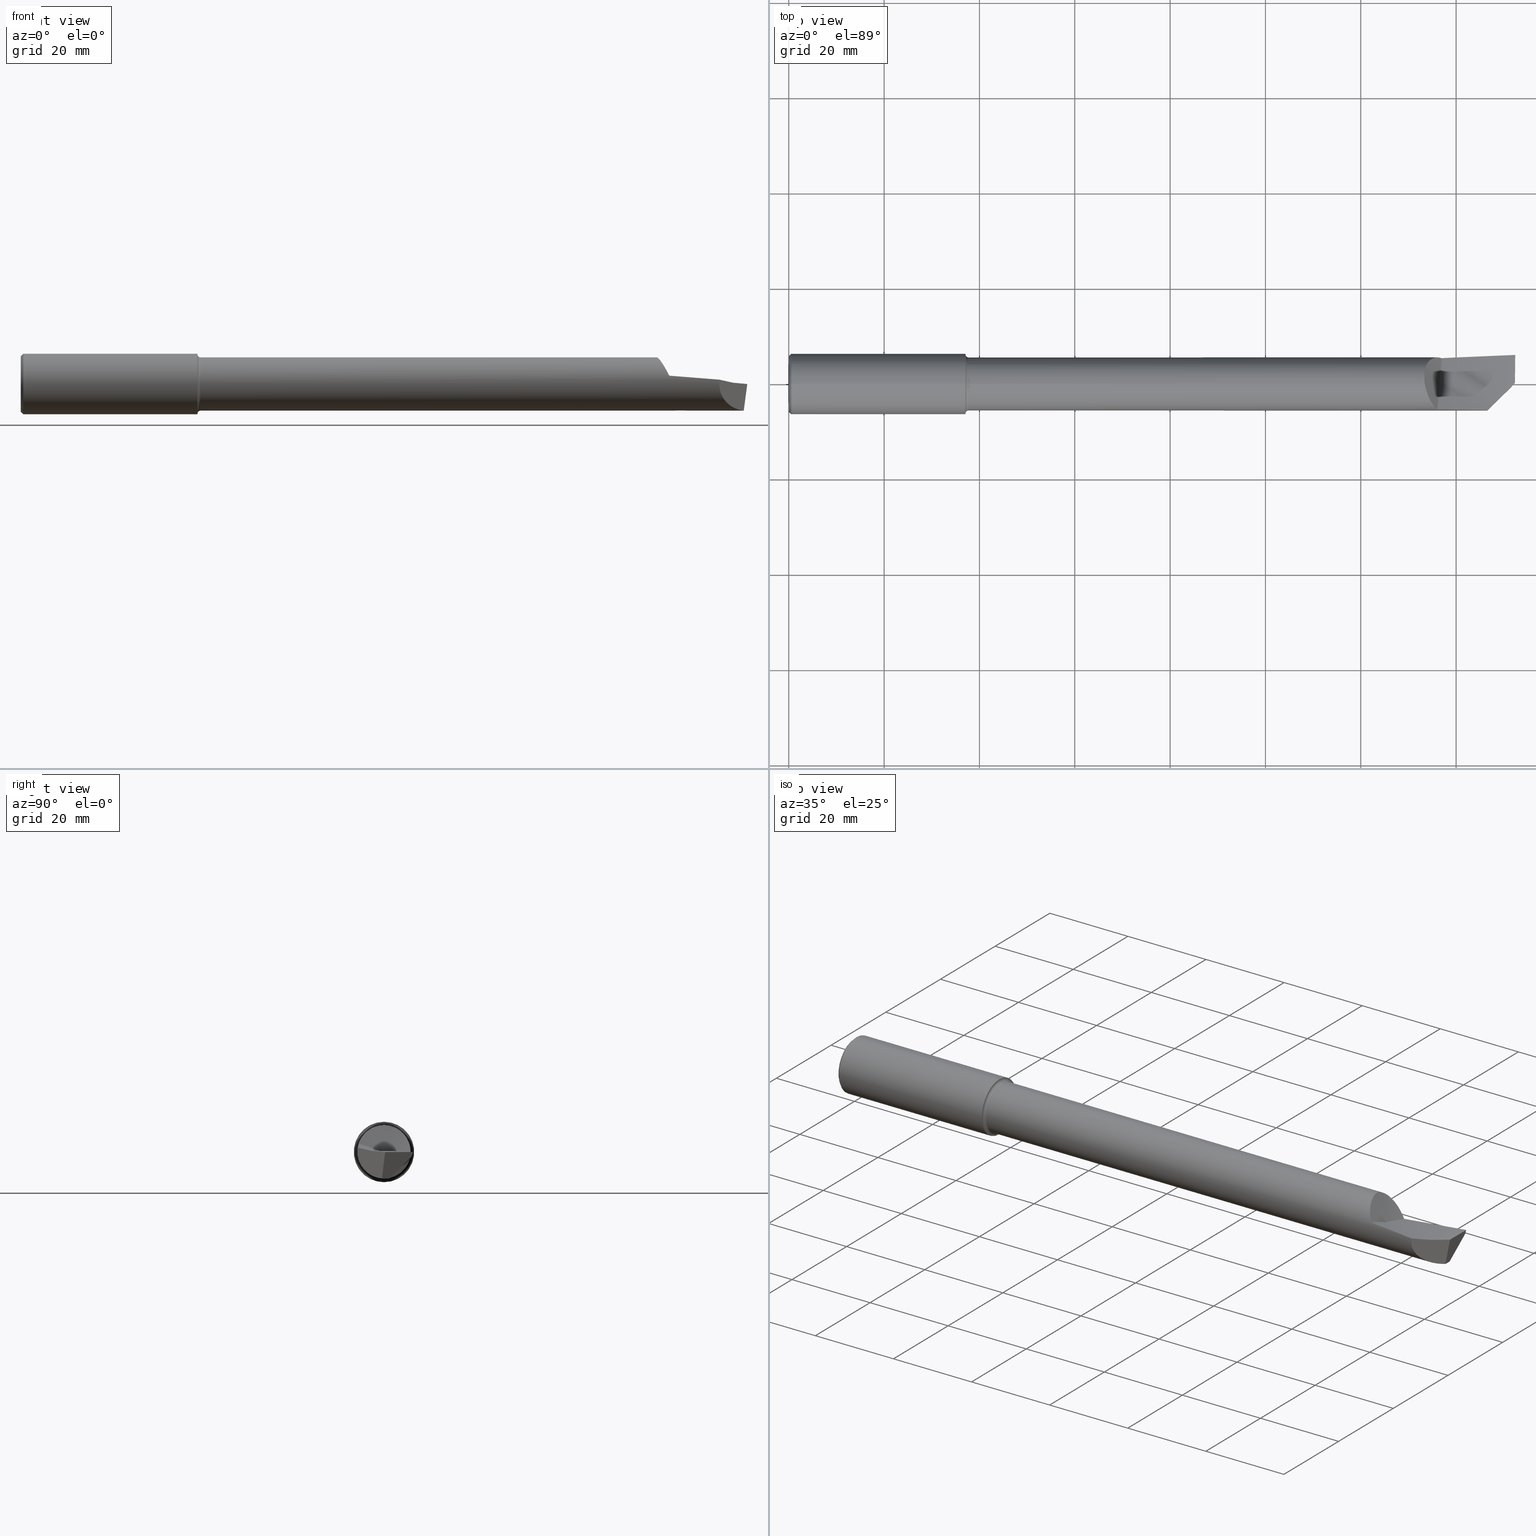
[diagram: canonical four-view strip — front | top / right | iso, engineering-drawing reading convention]
A machine part, canonical four-view strip (front | top / right | iso — engineering-drawing reading convention). The complete STEP part file that produces these views, byte-faithful:
ISO-10303-21;
HEADER;
FILE_DESCRIPTION (( 'STEP AP203' ),
    '1' );
FILE_NAME ('216429-HB4804500.STEP',
    '2024-08-09T23:03:37',
    ( '' ),
    ( '' ),
    'SwSTEP 2.0',
    'SolidWorks 2024',
    '' );
FILE_SCHEMA (( 'CONFIG_CONTROL_DESIGN' ));
ENDSEC;

DATA;
#1 = EDGE_CURVE ( 'NONE', #506, #519, #538, .T. ) ;
#2 = EDGE_CURVE ( 'NONE', #629, #571, #173, .T. ) ;
#3 = PRODUCT_DEFINITION ( 'UNKNOWN', '', #729, #549 ) ;
#4 = B_SPLINE_CURVE_WITH_KNOTS ( 'NONE', 3,
 ( #550, #271, #602, #418 ),
 .UNSPECIFIED., .F., .F.,
 ( 4, 4 ),
 ( 0.000000000000000000, 1.000000000000000000 ),
 .UNSPECIFIED. ) ;
#5 = AXIS2_PLACEMENT_3D ( 'NONE', #341, #388, #518 ) ;
#6 = ORIENTED_EDGE ( 'NONE', *, *, #374, .T. ) ;
#7 = PERSON_AND_ORGANIZATION_ROLE ( 'design_owner' ) ;
#8 = APPLICATION_CONTEXT ( 'configuration controlled 3d designs of mechanical parts and assemblies' ) ;
#9 = CARTESIAN_POINT ( 'NONE',  ( 5.283226719027450891, -0.1059187799789718248, 0.1929277633858645646 ) ) ;
#10 = ORIENTED_EDGE ( 'NONE', *, *, #344, .F. ) ;
#11 = CARTESIAN_POINT ( 'NONE',  ( 5.970822649411937633, -0.01752950339669020682, -0.2193005164395777362 ) ) ;
#12 = EDGE_CURVE ( 'NONE', #507, #396, #403, .T. ) ;
#13 = EDGE_LOOP ( 'NONE', ( #679, #268, #486, #616 ) ) ;
#14 = CARTESIAN_POINT ( 'NONE',  ( 5.256435488265876366, -0.02101578052564987212, 0.2199999835917510471 ) ) ;
#15 = DIRECTION ( 'NONE',  ( -1.000000000000000000, -0.000000000000000000, -0.000000000000000000 ) ) ;
#16 = ORIENTED_EDGE ( 'NONE', *, *, #280, .T. ) ;
#17 = EDGE_CURVE ( 'NONE', #519, #396, #702, .T. ) ;
#18 = LOCAL_TIME ( 16, 3, 37.00000000000000000, #543 ) ;
#19 = CALENDAR_DATE ( 2024, 9, 8 ) ;
#20 = CARTESIAN_POINT ( 'NONE',  ( 1.459525038226270333, 0.000000000000000000, 0.000000000000000000 ) ) ;
#21 = DIRECTION ( 'NONE',  ( -0.008726535498366671390, -0.9999619230641714207, 0.000000000000000000 ) ) ;
#22 = CARTESIAN_POINT ( 'NONE',  ( 5.038461538461540101, 0.1282380153811019941, -0.06570616055808793654 ) ) ;
#23 = DIRECTION ( 'NONE',  ( -1.000000000000000000, -0.000000000000000000, -0.000000000000000000 ) ) ;
#24 = DATE_AND_TIME ( #609, #119 ) ;
#25 = DIRECTION ( 'NONE',  ( 0.000000000000000000, 0.000000000000000000, 1.000000000000000000 ) ) ;
#26 = CARTESIAN_POINT ( 'NONE',  ( 5.293395547304614368, -0.1282223768002896391, 0.1787856457334581206 ) ) ;
#27 = DIRECTION ( 'NONE',  ( -0.7071067811865473507, -0.7071067811865475727, 0.000000000000000000 ) ) ;
#28 = PRODUCT_RELATED_PRODUCT_CATEGORY ( 'detail', '', ( #115 ) ) ;
#29 = CYLINDRICAL_SURFACE ( 'NONE', #643, 0.2498499999999999888 ) ;
#30 = ADVANCED_FACE ( 'NONE', ( #728 ), #202, .T. ) ;
#31 = AXIS2_PLACEMENT_3D ( 'NONE', #695, #450, #397 ) ;
#32 = DIRECTION ( 'NONE',  ( -1.000000000000000000, -0.000000000000000000, -0.000000000000000000 ) ) ;
#33 = PLANE ( 'NONE',  #121 ) ;
#34 = DIRECTION ( 'NONE',  ( -1.000000000000000000, -0.000000000000000000, -0.000000000000000000 ) ) ;
#35 = CARTESIAN_POINT ( 'NONE',  ( 5.771270714435558169, -0.2170814383730695907, 0.03571623039850650716 ) ) ;
#36 = EDGE_LOOP ( 'NONE', ( #122, #204, #446, #354 ) ) ;
#37 = ORIENTED_EDGE ( 'NONE', *, *, #632, .T. ) ;
#38 = CARTESIAN_POINT ( 'NONE',  ( 5.252899803584523575, 0.0009714720314203271947, 0.2199983901436112776 ) ) ;
#39 = CARTESIAN_POINT ( 'NONE',  ( 0.000000000000000000, 2.937315347754926265E-17, 0.2298499999999999155 ) ) ;
#40 = DIRECTION ( 'NONE',  ( -1.000000000000000000, -0.000000000000000000, -0.000000000000000000 ) ) ;
#41 = DIRECTION ( 'NONE',  ( 0.000000000000000000, 0.000000000000000000, -1.000000000000000000 ) ) ;
#42 = ORIENTED_EDGE ( 'NONE', *, *, #172, .T. ) ;
#43 = ORIENTED_EDGE ( 'NONE', *, *, #272, .T. ) ;
#44 = CARTESIAN_POINT ( 'NONE',  ( 5.303450587856115561, 0.2017322369564578388, 0.08777317349638595612 ) ) ;
#45 = CARTESIAN_POINT ( 'NONE',  ( 5.998332384698993103, 0.2359238552322701354, -0.01327365212250779074 ) ) ;
#46 = CARTESIAN_POINT ( 'NONE',  ( 5.410000000000000142, 0.1970817183423179408, -0.08059262188691969364 ) ) ;
#47 = AXIS2_PLACEMENT_3D ( 'NONE', #613, #492, #260 ) ;
#48 = ORIENTED_EDGE ( 'NONE', *, *, #644, .T. ) ;
#49 = CARTESIAN_POINT ( 'NONE',  ( 5.252520733773949679, 0.003396144702146769358, 0.2199775199475226262 ) ) ;
#50 = DIRECTION ( 'NONE',  ( 0.000000000000000000, -0.000000000000000000, 1.000000000000000000 ) ) ;
#51 = CARTESIAN_POINT ( 'NONE',  ( 5.803332917529132828, 0.2199919291101521956, -0.05201733605973043323 ) ) ;
#52 = EDGE_LOOP ( 'NONE', ( #350, #420, #334, #693, #64 ) ) ;
#53 = CARTESIAN_POINT ( 'NONE',  ( 5.250000000000000888, 0.02296396303118268881, 0.2187982093206032042 ) ) ;
#54 =( BOUNDED_CURVE ( )  B_SPLINE_CURVE ( 3, ( #35, #256, #669, #187 ),
 .UNSPECIFIED., .F., .T. ) 
 B_SPLINE_CURVE_WITH_KNOTS ( ( 4, 4 ),
 ( 6.120117067556848589, 7.774217519258906250 ),
 .UNSPECIFIED. ) 
 CURVE ( )  GEOMETRIC_REPRESENTATION_ITEM ( )  RATIONAL_B_SPLINE_CURVE ( ( 1.000000000000000000, 0.7846997011302692115, 0.7846997011302692115, 1.000000000000000000 ) ) 
 REPRESENTATION_ITEM ( '' )  );
#55 = ADVANCED_FACE ( 'NONE', ( #273 ), #325, .F. ) ;
#56 = VECTOR ( 'NONE', #131, 39.37007874015748143 ) ;
#57 = EDGE_CURVE ( 'NONE', #462, #592, #182, .T. ) ;
#58 = EDGE_CURVE ( 'NONE', #507, #506, #662, .T. ) ;
#59 = MANIFOLD_SOLID_BREP ( 'Front Angle', #132 ) ;
#60 = VERTEX_POINT ( 'NONE', #212 ) ;
#61 = LOCAL_TIME ( 16, 3, 37.00000000000000000, #474 ) ;
#62 = APPROVAL_PERSON_ORGANIZATION ( #128, #164, #245 ) ;
#63 = DIRECTION ( 'NONE',  ( 1.000000000000000000, 0.000000000000000000, 0.000000000000000000 ) ) ;
#64 = ORIENTED_EDGE ( 'NONE', *, *, #179, .F. ) ;
#65 = CALENDAR_DATE ( 2024, 9, 8 ) ;
#66 = CARTESIAN_POINT ( 'NONE',  ( 0.000000000000000000, 0.000000000000000000, 0.000000000000000000 ) ) ;
#67 = ORIENTED_EDGE ( 'NONE', *, *, #404, .F. ) ;
#68 = APPROVAL_DATE_TIME ( #24, #164 ) ;
#69 = DIRECTION ( 'NONE',  ( -1.000000000000000000, -0.000000000000000000, -0.000000000000000000 ) ) ;
#70 = CARTESIAN_POINT ( 'NONE',  ( 6.000000000000000000, -0.1427725359348056000, -0.004432535825742341291 ) ) ;
#71 = AXIS2_PLACEMENT_3D ( 'NONE', #381, #40, #319 ) ;
#72 = ORIENTED_EDGE ( 'NONE', *, *, #488, .F. ) ;
#73 = DIRECTION ( 'NONE',  ( 1.000000000000000000, 0.000000000000000000, 0.000000000000000000 ) ) ;
#74 = CARTESIAN_POINT ( 'NONE',  ( 6.000000000000000888, 0.2402499999999999636, 0.000000000000000000 ) ) ;
#75 = CARTESIAN_POINT ( 'NONE',  ( 0.02000000000000000042, 3.059780027669661931E-17, 0.2498499999999999888 ) ) ;
#76 = DIRECTION ( 'NONE',  ( -1.000000000000000000, -0.000000000000000000, -0.000000000000000000 ) ) ;
#77 = DIRECTION ( 'NONE',  ( 0.000000000000000000, -1.000000000000000000, 0.000000000000000000 ) ) ;
#78 = COORDINATED_UNIVERSAL_TIME_OFFSET ( 8, 0, .BEHIND. ) ;
#79 = CARTESIAN_POINT ( 'NONE',  ( 5.533631329113467778, -0.007501773097099858310, -0.2200000000000000011 ) ) ;
#80 = CC_DESIGN_PERSON_AND_ORGANIZATION_ASSIGNMENT ( #709, #723, ( #729 ) ) ;
#81 = DIRECTION ( 'NONE',  ( 0.7071067811865459074, 8.659560562354952580E-17, 0.7071067811865491270 ) ) ;
#82 = CARTESIAN_POINT ( 'NONE',  ( 5.410000000000000142, 0.1970817183423179408, -0.08059262188691969364 ) ) ;
#83 = CARTESIAN_POINT ( 'NONE',  ( 5.250000000000000888, 0.09504805913230378323, 0.1984083326253766877 ) ) ;
#84 = APPLICATION_PROTOCOL_DEFINITION ( 'international standard', 'config_control_design', 1994, #8 ) ;
#85 = CARTESIAN_POINT ( 'NONE',  ( 5.960702989773094096, -0.02764916303553417026, -0.3009961683226821116 ) ) ;
#86 = CARTESIAN_POINT ( 'NONE',  ( 5.286822331381984874, 0.1866629217514929606, 0.1166063220459099964 ) ) ;
#87 = FACE_OUTER_BOUND ( 'NONE', #300, .T. ) ;
#88 = CARTESIAN_POINT ( 'NONE',  ( 5.410000000000000142, 0.2135228625924187884, -0.05299044395307136307 ) ) ;
#89 = ORIENTED_EDGE ( 'NONE', *, *, #295, .F. ) ;
#90 = CARTESIAN_POINT ( 'NONE',  ( 5.301951721649977856, 0.2006176853541234983, 0.09029816438342547213 ) ) ;
#91 = CARTESIAN_POINT ( 'NONE',  ( 0.02000000000000000042, 0.000000000000000000, 0.000000000000000000 ) ) ;
#92 = FACE_OUTER_BOUND ( 'NONE', #424, .T. ) ;
#93 = CIRCLE ( 'NONE', #565, 0.2498499999999999888 ) ;
#94 = CARTESIAN_POINT ( 'NONE',  ( 5.356559098504063421, -0.2088777642239236787, 0.06906576061805669298 ) ) ;
#95 = ORIENTED_EDGE ( 'NONE', *, *, #547, .T. ) ;
#96 = EDGE_CURVE ( 'NONE', #109, #297, #510, .T. ) ;
#97 = DIRECTION ( 'NONE',  ( 0.000000000000000000, 0.000000000000000000, 1.000000000000000000 ) ) ;
#98 = CARTESIAN_POINT ( 'NONE',  ( 5.800369049489878748, 0.2198292400659614676, -0.05224798050528018517 ) ) ;
#99 = ORIENTED_EDGE ( 'NONE', *, *, #332, .T. ) ;
#100 = ORIENTED_EDGE ( 'NONE', *, *, #642, .F. ) ;
#101 = CYLINDRICAL_SURFACE ( 'NONE', #117, 0.2498499999999999888 ) ;
#102 = CARTESIAN_POINT ( 'NONE',  ( 1.459525038226270333, 0.000000000000000000, 0.2498499999999999888 ) ) ;
#103 = ADVANCED_FACE ( 'NONE', ( #677 ), #667, .T. ) ;
#104 = FACE_OUTER_BOUND ( 'NONE', #52, .T. ) ;
#105 = ORIENTED_EDGE ( 'NONE', *, *, #232, .T. ) ;
#106 = CARTESIAN_POINT ( 'NONE',  ( 5.996294878558302344, 0.2306141419735414366, -0.02948980456723003171 ) ) ;
#107 = CIRCLE ( 'NONE', #498, 0.2200000000000000011 ) ;
#108 = CARTESIAN_POINT ( 'NONE',  ( 1.459525038226270333, 3.059780027669661931E-17, -0.2498499999999999888 ) ) ;
#109 = VERTEX_POINT ( 'NONE', #314 ) ;
#110 = CARTESIAN_POINT ( 'NONE',  ( 4.717948717948720727, 0.3831985670997781201, -0.1862012283307211968 ) ) ;
#111 = EDGE_CURVE ( 'NONE', #576, #358, #596, .T. ) ;
#112 = ADVANCED_FACE ( 'NONE', ( #556 ), #29, .T. ) ;
#113 = PLANE ( 'NONE',  #235 ) ;
#114 = ORIENTED_EDGE ( 'NONE', *, *, #124, .F. ) ;
#115 = PRODUCT ( '216429-HB4804500', '216429-HB4804500', '', ( #604 ) ) ;
#116 = ORIENTED_EDGE ( 'NONE', *, *, #468, .T. ) ;
#117 = AXIS2_PLACEMENT_3D ( 'NONE', #153, #32, #503 ) ;
#118 = PERSON_AND_ORGANIZATION_ROLE ( 'design_supplier' ) ;
#119 = LOCAL_TIME ( 16, 3, 37.00000000000000000, #135 ) ;
#120 = CARTESIAN_POINT ( 'NONE',  ( 5.272414265991219651, -0.07762841386096502871, 0.2061942163186600840 ) ) ;
#121 = AXIS2_PLACEMENT_3D ( 'NONE', #265, #423, #27 ) ;
#122 = ORIENTED_EDGE ( 'NONE', *, *, #12, .F. ) ;
#123 = SHAPE_DEFINITION_REPRESENTATION ( #472, #389 ) ;
#124 = EDGE_CURVE ( 'NONE', #705, #391, #148, .T. ) ;
#125 = CARTESIAN_POINT ( 'NONE',  ( 5.301763750540529507, -0.1449087477148439662, 0.1665523849273789492 ) ) ;
#126 = DIRECTION ( 'NONE',  ( 1.000000000000000000, 0.000000000000000000, 0.000000000000000000 ) ) ;
#127 = ORIENTED_EDGE ( 'NONE', *, *, #168, .T. ) ;
#128 = PERSON_AND_ORGANIZATION ( #218, #712 ) ;
#129 = CARTESIAN_POINT ( 'NONE',  ( 1.484525038226270244, 0.000000000000000000, 0.000000000000000000 ) ) ;
#130 = CARTESIAN_POINT ( 'NONE',  ( 5.253048836201133831, -1.183062825525345383E-06, 0.2200124226379089887 ) ) ;
#131 = DIRECTION ( 'NONE',  ( -1.000000000000000000, -0.000000000000000000, -0.000000000000000000 ) ) ;
#132 = CLOSED_SHELL ( 'NONE', ( #480, #544, #290, #30, #191, #691, #103, #112, #188, #566, #640, #517, #55, #149, #719, #511, #689, #704, #598, #526 ) ) ;
#133 = EDGE_CURVE ( 'NONE', #471, #661, #390, .T. ) ;
#134 = EDGE_LOOP ( 'NONE', ( #577, #755, #495, #100 ) ) ;
#135 = COORDINATED_UNIVERSAL_TIME_OFFSET ( 8, 0, .BEHIND. ) ;
#136 = CIRCLE ( 'NONE', #580, 0.2498499999999999888 ) ;
#137 = CARTESIAN_POINT ( 'NONE',  ( 5.250000000000000888, 0.09504805913230378323, 0.1984083326253766877 ) ) ;
#138 = CARTESIAN_POINT ( 'NONE',  ( 5.292376002346411035, -0.1261431576479110639, 0.1802597226350352022 ) ) ;
#139 = CARTESIAN_POINT ( 'NONE',  ( 0.000000000000000000, 0.000000000000000000, 0.000000000000000000 ) ) ;
#140 = APPROVAL_STATUS ( 'not_yet_approved' ) ;
#141 = CARTESIAN_POINT ( 'NONE',  ( 5.997941307501979402, 0.009589154693349864408, -0.0003725554249013883251 ) ) ;
#142 = CARTESIAN_POINT ( 'NONE',  ( 5.382444373406586990, 0.08525274857312417631, -0.02813121554086442724 ) ) ;
#143 = PLANE ( 'NONE',  #624 ) ;
#144 = CARTESIAN_POINT ( 'NONE',  ( 5.412811562919337405, 0.2143837749633565049, -0.05157965173914655366 ) ) ;
#145 = CARTESIAN_POINT ( 'NONE',  ( 5.357725844419114480, -0.2089080893730916877, 0.06897406050240388609 ) ) ;
#146 = CARTESIAN_POINT ( 'NONE',  ( 5.297319446116645736, 0.1969271478189842384, 0.09817724510292789863 ) ) ;
#147 = LINE ( 'NONE', #441, #56 ) ;
#148 = LINE ( 'NONE', #620, #213 ) ;
#149 = ADVANCED_FACE ( 'NONE', ( #92 ), #530, .T. ) ;
#150 = FACE_OUTER_BOUND ( 'NONE', #513, .T. ) ;
#151 = ORIENTED_EDGE ( 'NONE', *, *, #406, .F. ) ;
#152 = ORIENTED_EDGE ( 'NONE', *, *, #96, .F. ) ;
#153 = CARTESIAN_POINT ( 'NONE',  ( 0.000000000000000000, 0.000000000000000000, 0.000000000000000000 ) ) ;
#154 = CARTESIAN_POINT ( 'NONE',  ( 5.606667235806140681, -0.05861467462045868992, -0.2653019991293242841 ) ) ;
#155 = DIRECTION ( 'NONE',  ( 0.7071067811865459074, 0.000000000000000000, -0.7071067811865491270 ) ) ;
#156 = CIRCLE ( 'NONE', #185, 0.2498499999999999888 ) ;
#157 = DIRECTION ( 'NONE',  ( 0.000000000000000000, 0.000000000000000000, 1.000000000000000000 ) ) ;
#158 = ORIENTED_EDGE ( 'NONE', *, *, #172, .F. ) ;
#159 = CARTESIAN_POINT ( 'NONE',  ( 5.410000000000000142, 0.000000000000000000, 0.000000000000000000 ) ) ;
#160 = CARTESIAN_POINT ( 'NONE',  ( 5.999444042726897131, 0.2388107301504573121, -0.004425444538988817719 ) ) ;
#161 = FACE_OUTER_BOUND ( 'NONE', #13, .T. ) ;
#162 = ORIENTED_EDGE ( 'NONE', *, *, #701, .T. ) ;
#163 = DIRECTION ( 'NONE',  ( 1.000000000000000000, 0.000000000000000000, -0.000000000000000000 ) ) ;
#164 = APPROVAL ( #140, 'UNSPECIFIED' ) ;
#165 = CARTESIAN_POINT ( 'NONE',  ( 6.000000000000000888, 0.2402499999999999636, 0.000000000000000000 ) ) ;
#166 = ORIENTED_EDGE ( 'NONE', *, *, #2, .T. ) ;
#167 = CARTESIAN_POINT ( 'NONE',  ( 5.995924508398111641, 0.2296459939770671144, -0.03243730289248254045 ) ) ;
#168 = EDGE_CURVE ( 'NONE', #680, #391, #706, .T. ) ;
#169 = CIRCLE ( 'NONE', #349, 0.2449999999999999956 ) ;
#170 = CC_DESIGN_APPROVAL ( #646, ( #263 ) ) ;
#171 = CARTESIAN_POINT ( 'NONE',  ( 5.410000000000000142, 0.000000000000000000, -0.2200000000000000566 ) ) ;
#172 = EDGE_CURVE ( 'NONE', #358, #576, #647, .T. ) ;
#173 = LINE ( 'NONE', #473, #234 ) ;
#174 = DIRECTION ( 'NONE',  ( 0.000000000000000000, -0.8460071056678396539, -0.5331716207371927085 ) ) ;
#175 = CALENDAR_DATE ( 2024, 9, 8 ) ;
#176 = AXIS2_PLACEMENT_3D ( 'NONE', #548, #720, #257 ) ;
#177 = DIRECTION ( 'NONE',  ( 1.000000000000000000, -0.000000000000000000, -0.000000000000000000 ) ) ;
#178 = ORIENTED_EDGE ( 'NONE', *, *, #362, .F. ) ;
#179 = EDGE_CURVE ( 'NONE', #738, #471, #246, .T. ) ;
#180 = PERSON_AND_ORGANIZATION ( #218, #712 ) ;
#181 = B_SPLINE_CURVE_WITH_KNOTS ( 'NONE', 3,
 ( #664, #365, #79, #376 ),
 .UNSPECIFIED., .F., .F.,
 ( 4, 4 ),
 ( 0.000000000000000000, 0.004744245821424695857 ),
 .UNSPECIFIED. ) ;
#182 = B_SPLINE_CURVE_WITH_KNOTS ( 'NONE', 3,
 ( #449, #197, #266, #569 ),
 .UNSPECIFIED., .F., .F.,
 ( 4, 4 ),
 ( 5.707661567877777648E-05, 0.006771847982225308142 ),
 .UNSPECIFIED. ) ;
#183 = FACE_OUTER_BOUND ( 'NONE', #445, .T. ) ;
#184 = CARTESIAN_POINT ( 'NONE',  ( 5.392944745247168825, 0.2140968924730454748, -0.05062134562993383935 ) ) ;
#185 = AXIS2_PLACEMENT_3D ( 'NONE', #676, #15, #721 ) ;
#186 = ORIENTED_EDGE ( 'NONE', *, *, #332, .F. ) ;
#187 = CARTESIAN_POINT ( 'NONE',  ( 5.970822649411937633, -0.01752950339669020682, -0.2193005164395777362 ) ) ;
#188 = ADVANCED_FACE ( 'NONE', ( #372 ), #361, .F. ) ;
#189 = LINE ( 'NONE', #307, #410 ) ;
#190 = CARTESIAN_POINT ( 'NONE',  ( 6.000000000000000888, -0.4232169687476833864, 0.04721891282440422027 ) ) ;
#191 = ADVANCED_FACE ( 'NONE', ( #183 ), #615, .T. ) ;
#192 = ORIENTED_EDGE ( 'NONE', *, *, #648, .T. ) ;
#193 = APPROVAL_ROLE ( '' ) ;
#194 = DIRECTION ( 'NONE',  ( -1.000000000000000000, -0.000000000000000000, -0.000000000000000000 ) ) ;
#195 = CARTESIAN_POINT ( 'NONE',  ( 5.612381827555388725, 0.2257843348541586359, -0.03415235492858138128 ) ) ;
#196 = CARTESIAN_POINT ( 'NONE',  ( 5.392944745247168825, 0.2140968924730454748, -0.05062134562993383935 ) ) ;
#197 = CARTESIAN_POINT ( 'NONE',  ( 5.979285236293185868, 0.1041417096289699723, -0.1590283092674938392 ) ) ;
#198 = PERSON_AND_ORGANIZATION ( #218, #712 ) ;
#199 = VECTOR ( 'NONE', #557, 39.37007874015748143 ) ;
#200 = CARTESIAN_POINT ( 'NONE',  ( 5.410000000000000142, 0.000000000000000000, 0.000000000000000000 ) ) ;
#201 = CARTESIAN_POINT ( 'NONE',  ( 5.358974358974360364, -0.3996188273119117840, 0.1471292670482277631 ) ) ;
#202 = CYLINDRICAL_SURFACE ( 'NONE', #71, 0.2200000000000000566 ) ;
#203 = DIRECTION ( 'NONE',  ( 0.000000000000000000, 0.000000000000000000, 1.000000000000000000 ) ) ;
#204 = ORIENTED_EDGE ( 'NONE', *, *, #434, .F. ) ;
#205 = CARTESIAN_POINT ( 'NONE',  ( 5.268791352084498669, 0.1599650663951595886, 0.1510341587815036413 ) ) ;
#206 = CARTESIAN_POINT ( 'NONE',  ( 5.679487179487181514, -0.4174835547069452035, 0.09860675650306138795 ) ) ;
#207 = CARTESIAN_POINT ( 'NONE',  ( 0.000000000000000000, 0.000000000000000000, 0.000000000000000000 ) ) ;
#208 = CARTESIAN_POINT ( 'NONE',  ( 5.410000000000001918, 0.2144189151190963594, -0.04923950486296321122 ) ) ;
#209 = ORIENTED_EDGE ( 'NONE', *, *, #583, .T. ) ;
#210 = ORIENTED_EDGE ( 'NONE', *, *, #547, .F. ) ;
#211 = CARTESIAN_POINT ( 'NONE',  ( 5.278168894559946978, 0.1761411732434174648, 0.1324183139899700046 ) ) ;
#212 = CARTESIAN_POINT ( 'NONE',  ( 5.970889738018302140, 0.000000000000000000, -0.2200000000000000566 ) ) ;
#213 = VECTOR ( 'NONE', #499, 39.37007874015748143 ) ;
#214 = CARTESIAN_POINT ( 'NONE',  ( 5.410000000000000142, 0.1970817183423179408, -0.08059262188691969364 ) ) ;
#215 = ORIENTED_EDGE ( 'NONE', *, *, #355, .T. ) ;
#216 = CARTESIAN_POINT ( 'NONE',  ( 5.326303742156078158, 0.2141922380105743262, 0.05056821540889350208 ) ) ;
#217 = CARTESIAN_POINT ( 'NONE',  ( 5.803332785482715472, -0.03231946398605128196, -0.2694059603549082138 ) ) ;
#218 = PERSON ( 'UNSPECIFIED', 'UNSPECIFIED', 'UNSPECIFIED', ('UNSPECIFIED'), ('UNSPECIFIED'), ('UNSPECIFIED') ) ;
#219 = DIRECTION ( 'NONE',  ( 1.000000000000000000, 0.000000000000000000, 0.000000000000000000 ) ) ;
#220 = ORIENTED_EDGE ( 'NONE', *, *, #746, .T. ) ;
#221 = EDGE_LOOP ( 'NONE', ( #563, #321, #309, #657, #236, #158, #99, #244, #95 ) ) ;
#222 = CARTESIAN_POINT ( 'NONE',  ( 5.264876125876235768, 0.1518534575458663771, 0.1592507360763968649 ) ) ;
#223 = CARTESIAN_POINT ( 'NONE',  ( 5.998888170757107119, 0.2373686809149650467, -0.008849996828385428560 ) ) ;
#224 = CC_DESIGN_PERSON_AND_ORGANIZATION_ASSIGNMENT ( #411, #118, ( #729 ) ) ;
#225 = CARTESIAN_POINT ( 'NONE',  ( 5.410000000000000142, 0.2159144635021685021, -0.04897531016107510571 ) ) ;
#226 = EDGE_LOOP ( 'NONE', ( #16, #105 ) ) ;
#227 = CARTESIAN_POINT ( 'NONE',  ( 5.410000000000000142, 0.1970817183423179408, -0.08059262188691969364 ) ) ;
#228 = AXIS2_PLACEMENT_3D ( 'NONE', #200, #63, #428 ) ;
#229 = CARTESIAN_POINT ( 'NONE',  ( 5.595439364795532278, 2.134256245050205639E-18, -0.2200000000000000566 ) ) ;
#230 = B_SPLINE_CURVE_WITH_KNOTS ( 'NONE', 3,
 ( #628, #98, #331, #46 ),
 .UNSPECIFIED., .F., .F.,
 ( 4, 4 ),
 ( 0.007535277762632255037, 1.000000000000000000 ),
 .UNSPECIFIED. ) ;
#231 = VECTOR ( 'NONE', #756, 39.37007874015748143 ) ;
#232 = EDGE_CURVE ( 'NONE', #680, #109, #758, .T. ) ;
#233 = EDGE_CURVE ( 'NONE', #383, #732, #419, .T. ) ;
#234 = VECTOR ( 'NONE', #174, 39.37007874015748854 ) ;
#235 = AXIS2_PLACEMENT_3D ( 'NONE', #165, #575, #461 ) ;
#236 = ORIENTED_EDGE ( 'NONE', *, *, #310, .T. ) ;
#237 = DIRECTION ( 'NONE',  ( 0.000000000000000000, 0.000000000000000000, -1.000000000000000000 ) ) ;
#238 = APPROVAL_STATUS ( 'not_yet_approved' ) ;
#239 = EDGE_CURVE ( 'NONE', #732, #519, #412, .T. ) ;
#240 = CARTESIAN_POINT ( 'NONE',  ( 0.000000000000000000, 0.000000000000000000, 0.000000000000000000 ) ) ;
#241 = ORIENTED_EDGE ( 'NONE', *, *, #57, .F. ) ;
#242 = DATE_AND_TIME ( #19, #18 ) ;
#243 = CARTESIAN_POINT ( 'NONE',  ( 5.970816303086416532, -0.01169718663061289528, -0.2197667151436271948 ) ) ;
#244 = ORIENTED_EDGE ( 'NONE', *, *, #623, .T. ) ;
#245 = APPROVAL_ROLE ( '' ) ;
#246 = B_SPLINE_CURVE_WITH_KNOTS ( 'NONE', 3,
 ( #652, #710, #195, #478 ),
 .UNSPECIFIED., .F., .F.,
 ( 4, 4 ),
 ( 1.235384741098576477E-19, 0.01483563987091332179 ),
 .UNSPECIFIED. ) ;
#247 = CARTESIAN_POINT ( 'NONE',  ( 5.970889738018302140, 0.000000000000000000, -0.2200000000000000566 ) ) ;
#248 = CARTESIAN_POINT ( 'NONE',  ( 5.358974358974360364, -0.1396846007746824214, 0.02986396988880485326 ) ) ;
#249 = CIRCLE ( 'NONE', #386, 0.2498499999999999888 ) ;
#250 = ORIENTED_EDGE ( 'NONE', *, *, #233, .T. ) ;
#251 = DATE_AND_TIME ( #175, #61 ) ;
#252 = CARTESIAN_POINT ( 'NONE',  ( 5.344850277066564459, 0.2189397232252884296, 0.02160200614133551966 ) ) ;
#253 = CARTESIAN_POINT ( 'NONE',  ( 5.355206627485801008, -0.2299856027569996131, 0.07713840752617585894 ) ) ;
#254 = FACE_OUTER_BOUND ( 'NONE', #630, .T. ) ;
#255 = DIRECTION ( 'NONE',  ( 0.000000000000000000, -1.224646799147353454E-16, 1.000000000000000000 ) ) ;
#256 = CARTESIAN_POINT ( 'NONE',  ( 5.748939529771278423, -0.2394126230373500308, -0.1000115783150166415 ) ) ;
#257 = DIRECTION ( 'NONE',  ( 0.000000000000000000, 0.000000000000000000, -1.000000000000000000 ) ) ;
#258 = CARTESIAN_POINT ( 'NONE',  ( 5.679487179487179738, -0.1433107432254709379, 0.01290318863713321371 ) ) ;
#259 =( BOUNDED_CURVE ( )  B_SPLINE_CURVE ( 3, ( #11, #243, #302, #247 ),
 .UNSPECIFIED., .F., .F. ) 
 B_SPLINE_CURVE_WITH_KNOTS ( ( 4, 4 ),
 ( 6.274373815428443635, 6.354137930144020174 ),
 .UNSPECIFIED. ) 
 CURVE ( )  GEOMETRIC_REPRESENTATION_ITEM ( )  RATIONAL_B_SPLINE_CURVE ( ( 1.000000000000000000, 0.9994698774393541152, 0.9994698774393541152, 1.000000000000000000 ) ) 
 REPRESENTATION_ITEM ( '' )  );
#260 = DIRECTION ( 'NONE',  ( 0.000000000000000000, 0.000000000000000000, 1.000000000000000000 ) ) ;
#261 = VECTOR ( 'NONE', #713, 39.37007874015748143 ) ;
#262 = CARTESIAN_POINT ( 'NONE',  ( 1.484525038226270244, 2.694222958124177561E-17, -0.2200000000000000566 ) ) ;
#263 = SECURITY_CLASSIFICATION ( '', '', #432 ) ;
#264 = CARTESIAN_POINT ( 'NONE',  ( 5.251069953674378787, 0.01350924812411918516, 0.2196435465291619316 ) ) ;
#265 = CARTESIAN_POINT ( 'NONE',  ( 5.754857864376270449, -0.2334942884323583379, -0.2500000000000000555 ) ) ;
#266 = CARTESIAN_POINT ( 'NONE',  ( 5.987387192537216407, 0.1666979988148842018, -0.09749167947810113977 ) ) ;
#267 = CARTESIAN_POINT ( 'NONE',  ( 5.846075425691751981, -0.1422767271168796921, 0.01425986872581068779 ) ) ;
#268 = ORIENTED_EDGE ( 'NONE', *, *, #280, .F. ) ;
#269 = ORIENTED_EDGE ( 'NONE', *, *, #310, .F. ) ;
#270 = CARTESIAN_POINT ( 'NONE',  ( 5.250000000000000888, 0.02296396303118268881, 0.2187982093206032042 ) ) ;
#271 = CARTESIAN_POINT ( 'NONE',  ( 5.380960247964670984, 0.07009182744065016457, -0.02311703390389483956 ) ) ;
#272 = EDGE_CURVE ( 'NONE', #617, #60, #259, .T. ) ;
#273 = FACE_OUTER_BOUND ( 'NONE', #338, .T. ) ;
#274 = CARTESIAN_POINT ( 'NONE',  ( 5.418486830548875588, 0.2160475044874685668, -0.04882782362294692258 ) ) ;
#275 = ORIENTED_EDGE ( 'NONE', *, *, #111, .F. ) ;
#276 = FACE_OUTER_BOUND ( 'NONE', #502, .T. ) ;
#277 = FACE_OUTER_BOUND ( 'NONE', #653, .T. ) ;
#278 = FACE_OUTER_BOUND ( 'NONE', #542, .T. ) ;
#279 = ORIENTED_EDGE ( 'NONE', *, *, #233, .F. ) ;
#280 = EDGE_CURVE ( 'NONE', #109, #680, #707, .T. ) ;
#281 = EDGE_CURVE ( 'NONE', #462, #60, #189, .T. ) ;
#282 = CARTESIAN_POINT ( 'NONE',  ( 5.251472560536515566, 0.1071583420974530909, 0.1926068782975457749 ) ) ;
#283 = FACE_OUTER_BOUND ( 'NONE', #744, .T. ) ;
#284 = DIRECTION ( 'NONE',  ( -1.000000000000000000, -0.000000000000000000, -0.000000000000000000 ) ) ;
#285 = ORIENTED_EDGE ( 'NONE', *, *, #583, .F. ) ;
#286 = CARTESIAN_POINT ( 'NONE',  ( 5.997220900003097377, 0.2330314313509031232, -0.02212005370832677634 ) ) ;
#287 = B_SPLINE_CURVE_WITH_KNOTS ( 'NONE', 3,
 ( #447, #282, #573, #521, #752, #625, #222, #739, #459, #611, #508, #205, #378, #211, #86, #558, #681, #146, #618, #90, #323, #567, #329, #44, #514, #747, #216, #452, #631, #687, #393, #603, #252, #311, #494, #421, #320, #561, #731 ),
 .UNSPECIFIED., .F., .F.,
 ( 4, 2, 2, 1, 1, 1, 2, 2, 2, 2, 1, 1, 1, 1, 2, 2, 2, 2, 2, 1, 1, 2, 2, 4 ),
 ( 0.000000000000000000, 0.1250000000000632550, 0.1875000000000961176, 0.2187500000001124656, 0.2343750000001207090, 0.2421875000001248446, 0.2460937500001254830, 0.2500000000001261213, 0.3750000000000630607, 0.4375000000000336398, 0.4687500000000210387, 0.4843750000000147660, 0.4921875000000116018, 0.4960937500000122680, 0.4980468750000126010, 0.5000000000000128786, 0.6249999999999572564, 0.6874999999999319433, 0.7187499999999192868, 0.7343749999999129585, 0.7421874999999098499, 0.7460937499999106270, 0.7499999999999112932, 1.000000000000000000 ),
 .UNSPECIFIED. ) ;
#288 = CARTESIAN_POINT ( 'NONE',  ( 5.606666739029584789, 0.2256837431086675116, -0.03431182088968370847 ) ) ;
#289 = AXIS2_PLACEMENT_3D ( 'NONE', #240, #601, #296 ) ;
#290 = ADVANCED_FACE ( 'NONE', ( #276 ), #101, .T. ) ;
#291 = UNCERTAINTY_MEASURE_WITH_UNIT (LENGTH_MEASURE( 1.000000000000000082E-05 ), #753, 'distance_accuracy_value', 'NONE');
#292 = CC_DESIGN_PERSON_AND_ORGANIZATION_ASSIGNMENT ( #198, #663, ( #263 ) ) ;
#293 = AXIS2_PLACEMENT_3D ( 'NONE', #692, #749, #584 ) ;
#294 = ORIENTED_EDGE ( 'NONE', *, *, #281, .T. ) ;
#295 = EDGE_CURVE ( 'NONE', #661, #456, #591, .T. ) ;
#296 = DIRECTION ( 'NONE',  ( 0.000000000000000000, 0.000000000000000000, 1.000000000000000000 ) ) ;
#297 = VERTEX_POINT ( 'NONE', #578 ) ;
#298 = DATE_AND_TIME ( #65, #501 ) ;
#299 = CARTESIAN_POINT ( 'NONE',  ( 5.291026367974281719, -0.1233195885780081907, 0.1821875986796213653 ) ) ;
#300 = EDGE_LOOP ( 'NONE', ( #67, #593, #72, #533, #192, #685, #322 ) ) ;
#301 = DATE_TIME_ROLE ( 'creation_date' ) ;
#302 = CARTESIAN_POINT ( 'NONE',  ( 5.970838677816553641, -0.005850919593664221513, -0.2200000000000000011 ) ) ;
#303 = CARTESIAN_POINT ( 'NONE',  ( 5.410000000000001918, 0.2144189151190963594, -0.04923950486296321122 ) ) ;
#304 = ORIENTED_EDGE ( 'NONE', *, *, #589, .T. ) ;
#305 = APPLICATION_PROTOCOL_DEFINITION ( 'international standard', 'config_control_design', 1994, #730 ) ;
#306 = CARTESIAN_POINT ( 'NONE',  ( 5.564429700643780841, -0.2143015012764733496, 0.05261254719292928622 ) ) ;
#307 = CARTESIAN_POINT ( 'NONE',  ( 5.970847024906386302, -0.004894437837194355254, -0.2200000000000000566 ) ) ;
#308 = CARTESIAN_POINT ( 'NONE',  ( 5.410000000000000142, 0.2135228625924187884, -0.05299044395307136307 ) ) ;
#309 = ORIENTED_EDGE ( 'NONE', *, *, #17, .F. ) ;
#310 = EDGE_CURVE ( 'NONE', #732, #576, #460, .T. ) ;
#311 = CARTESIAN_POINT ( 'NONE',  ( 5.345672065019172692, 0.2190582683874626457, 0.02033850287371858495 ) ) ;
#312 = CARTESIAN_POINT ( 'NONE',  ( 5.286194494552781009, -0.1128910208792994335, 0.1889741111404006357 ) ) ;
#313 = FACE_OUTER_BOUND ( 'NONE', #674, .T. ) ;
#314 = CARTESIAN_POINT ( 'NONE',  ( 0.000000000000000000, 0.000000000000000000, -0.2298499999999999155 ) ) ;
#315 = DIRECTION ( 'NONE',  ( -1.000000000000000000, -0.000000000000000000, -0.000000000000000000 ) ) ;
#316 = CARTESIAN_POINT ( 'NONE',  ( 5.252989359298702254, 0.0004094560187717709667, 0.2200000003197546961 ) ) ;
#317 = AXIS2_PLACEMENT_3D ( 'NONE', #66, #484, #714 ) ;
#318 = CARTESIAN_POINT ( 'NONE',  ( 5.358974358974360364, 0.4166243838240432651, -0.08908513940287006438 ) ) ;
#319 = DIRECTION ( 'NONE',  ( 0.000000000000000000, 0.000000000000000000, 1.000000000000000000 ) ) ;
#320 = CARTESIAN_POINT ( 'NONE',  ( 5.361872680313166661, 0.2211791025387655485, -0.004520542396876575664 ) ) ;
#321 = ORIENTED_EDGE ( 'NONE', *, *, #344, .T. ) ;
#322 = ORIENTED_EDGE ( 'NONE', *, *, #346, .F. ) ;
#323 = CARTESIAN_POINT ( 'NONE',  ( 5.302742053925486587, 0.2012100239217667619, 0.08896533452429478128 ) ) ;
#324 = DIRECTION ( 'NONE',  ( 1.000000000000000000, 0.000000000000000000, 0.000000000000000000 ) ) ;
#325 = PLANE ( 'NONE',  #515 ) ;
#326 = CC_DESIGN_APPROVAL ( #371, ( #3 ) ) ;
#327 = CARTESIAN_POINT ( 'NONE',  ( 1.459525038226270333, 0.000000000000000000, 0.2449999999999999956 ) ) ;
#328 = ORIENTED_EDGE ( 'NONE', *, *, #374, .F. ) ;
#329 = CARTESIAN_POINT ( 'NONE',  ( 5.303309749101932979, 0.2016291004824135591, 0.08800993919113511699 ) ) ;
#330 = CARTESIAN_POINT ( 'NONE',  ( 5.410000000000000142, 0.000000000000000000, -0.2200000000000000566 ) ) ;
#331 = CARTESIAN_POINT ( 'NONE',  ( 5.605184837390441821, 0.2091104526378110007, -0.06742930688143949913 ) ) ;
#332 = EDGE_CURVE ( 'NONE', #358, #590, #287, .T. ) ;
#333 = ORIENTED_EDGE ( 'NONE', *, *, #58, .F. ) ;
#334 = ORIENTED_EDGE ( 'NONE', *, *, #746, .F. ) ;
#335 = CARTESIAN_POINT ( 'NONE',  ( 5.253048836201133831, -1.183062825525345383E-06, 0.2200124226379089887 ) ) ;
#336 = AXIS2_PLACEMENT_3D ( 'NONE', #703, #77, #237 ) ;
#337 = CARTESIAN_POINT ( 'NONE',  ( 5.606666776175606159, 0.2092017806739804864, -0.06732936455339412485 ) ) ;
#338 = EDGE_LOOP ( 'NONE', ( #42, #572 ) ) ;
#339 = CONICAL_SURFACE ( 'NONE', #5, 0.2498499999999999888, 0.7853981633974506105 ) ;
#340 = PLANE ( 'NONE',  #416 ) ;
#341 = CARTESIAN_POINT ( 'NONE',  ( 0.02000000000000000042, 0.000000000000000000, 0.000000000000000000 ) ) ;
#342 = VERTEX_POINT ( 'NONE', #208 ) ;
#343 = CARTESIAN_POINT ( 'NONE',  ( 5.997941307501979402, 0.009589154693349864408, -0.0003725554249013883251 ) ) ;
#344 = EDGE_CURVE ( 'NONE', #456, #396, #673, .T. ) ;
#345 = APPROVAL_PERSON_ORGANIZATION ( #493, #371, #193 ) ;
#346 = EDGE_CURVE ( 'NONE', #745, #407, #699, .T. ) ;
#347 = CC_DESIGN_DATE_AND_TIME_ASSIGNMENT ( #251, #301, ( #3 ) ) ;
#348 = ORIENTED_EDGE ( 'NONE', *, *, #346, .T. ) ;
#349 = AXIS2_PLACEMENT_3D ( 'NONE', #382, #605, #203 ) ;
#350 = ORIENTED_EDGE ( 'NONE', *, *, #701, .F. ) ;
#351 = COORDINATED_UNIVERSAL_TIME_OFFSET ( 8, 0, .BEHIND. ) ;
#352 = B_SPLINE_SURFACE_WITH_KNOTS ( 'NONE', 1, 3, ( 
 ( #684, #512, #288, #225 ),
 ( #700, #51, #337, #214 ) ),
 .UNSPECIFIED., .F., .F., .F.,
 ( 2, 2 ),
 ( 4, 4 ),
 ( 0.000000000000000000, 1.000000000000000000 ),
 ( 0.000000000000000000, 1.000000000000000000 ),
 .UNSPECIFIED. ) ;
#353 = CARTESIAN_POINT ( 'NONE',  ( 0.000000000000000000, 0.000000000000000000, 0.2200000000000000566 ) ) ;
#354 = ORIENTED_EDGE ( 'NONE', *, *, #17, .T. ) ;
#355 = EDGE_CURVE ( 'NONE', #407, #383, #733, .T. ) ;
#356 = CARTESIAN_POINT ( 'NONE',  ( 5.291057892820146158, -0.1233858508182268526, 0.1821426667538900979 ) ) ;
#357 = CARTESIAN_POINT ( 'NONE',  ( 4.717948717948720727, -0.3527962921881071523, 0.2384890030643342096 ) ) ;
#358 = VERTEX_POINT ( 'NONE', #137 ) ;
#359 = DIRECTION ( 'NONE',  ( 0.000000000000000000, 0.000000000000000000, 1.000000000000000000 ) ) ;
#360 = VECTOR ( 'NONE', #155, 39.37007874015748143 ) ;
#361 = PLANE ( 'NONE',  #176 ) ;
#362 = EDGE_CURVE ( 'NONE', #396, #519, #528, .T. ) ;
#363 = DIRECTION ( 'NONE',  ( 1.000000000000000000, 0.000000000000000000, 0.000000000000000000 ) ) ;
#364 = ORIENTED_EDGE ( 'NONE', *, *, #133, .T. ) ;
#365 = CARTESIAN_POINT ( 'NONE',  ( 5.471819322562021526, -0.01495104440659961002, -0.2196163581689149769 ) ) ;
#366 = CARTESIAN_POINT ( 'NONE',  ( 5.276456940788357031, -0.08905058601311724442, 0.2015679351482878578 ) ) ;
#367 = CARTESIAN_POINT ( 'NONE',  ( 4.717948717948720727, -0.1284787043503996806, 0.06242489022452848979 ) ) ;
#368 = CARTESIAN_POINT ( 'NONE',  ( 5.250000000000000888, 0.02296396303118268881, 0.2187982093206032042 ) ) ;
#369 = APPROVAL_DATE_TIME ( #242, #371 ) ;
#370 = CARTESIAN_POINT ( 'NONE',  ( 5.971247793545430227, 0.04102909952500810586, -0.2200000000000000566 ) ) ;
#371 = APPROVAL ( #238, 'UNSPECIFIED' ) ;
#372 = FACE_OUTER_BOUND ( 'NONE', #226, .T. ) ;
#373 = CARTESIAN_POINT ( 'NONE',  ( 5.679487179487181514, 0.4274412781259713245, -0.03849778046020245481 ) ) ;
#374 = EDGE_CURVE ( 'NONE', #456, #571, #107, .T. ) ;
#375 = DIRECTION ( 'NONE',  ( 0.000000000000000000, 0.000000000000000000, 1.000000000000000000 ) ) ;
#376 = CARTESIAN_POINT ( 'NONE',  ( 5.595439364795532278, 2.134256245050205639E-18, -0.2200000000000000566 ) ) ;
#377 = ORIENTED_EDGE ( 'NONE', *, *, #457, .T. ) ;
#378 = CARTESIAN_POINT ( 'NONE',  ( 5.273164231607916363, 0.1684140353893864850, 0.1420550892562131851 ) ) ;
#379 = VECTOR ( 'NONE', #69, 39.37007874015748143 ) ;
#380 = PLANE ( 'NONE',  #454 ) ;
#381 = CARTESIAN_POINT ( 'NONE',  ( 0.000000000000000000, 0.000000000000000000, 0.000000000000000000 ) ) ;
#382 = CARTESIAN_POINT ( 'NONE',  ( 1.459525038226270333, 0.000000000000000000, 0.000000000000000000 ) ) ;
#383 = VERTEX_POINT ( 'NONE', #433 ) ;
#384 = CARTESIAN_POINT ( 'NONE',  ( 5.252011678586734789, 0.006780167464581198303, 0.2199103442296861943 ) ) ;
#385 = DIRECTION ( 'NONE',  ( -1.000000000000000000, 0.000000000000000000, 0.000000000000000000 ) ) ;
#386 = AXIS2_PLACEMENT_3D ( 'NONE', #541, #324, #568 ) ;
#387 =( BOUNDED_CURVE ( )  B_SPLINE_CURVE ( 2, ( #196, #727, #303 ),
 .UNSPECIFIED., .F., .T. ) 
 B_SPLINE_CURVE_WITH_KNOTS ( ( 3, 3 ),
 ( 0.5266614230579070854, 0.5400257304258038182 ),
 .UNSPECIFIED. ) 
 CURVE ( )  GEOMETRIC_REPRESENTATION_ITEM ( )  RATIONAL_B_SPLINE_CURVE ( ( 0.9955652346528230945, 0.9953917806560829140, 0.9952287059344252507 ) ) 
 REPRESENTATION_ITEM ( '' )  );
#388 = DIRECTION ( 'NONE',  ( 1.000000000000000000, 0.000000000000000000, 0.000000000000000000 ) ) ;
#389 = ADVANCED_BREP_SHAPE_REPRESENTATION ( '216429-HB4804500', ( #59, #759 ), #686 ) ;
#390 = B_SPLINE_CURVE_WITH_KNOTS ( 'NONE', 3,
 ( #437, #672, #144, #88 ),
 .UNSPECIFIED., .F., .F.,
 ( 4, 4 ),
 ( 3.505408379536524582E-05, 0.0002835685499873839160 ),
 .UNSPECIFIED. ) ;
#391 = VERTEX_POINT ( 'NONE', #600 ) ;
#392 = ORIENTED_EDGE ( 'NONE', *, *, #402, .F. ) ;
#393 = CARTESIAN_POINT ( 'NONE',  ( 5.341349125908413598, 0.2183424038738390471, 0.02700579478126316491 ) ) ;
#394 = CARTESIAN_POINT ( 'NONE',  ( 5.410000000000000142, 0.2159144635021685021, -0.04897531016107510571 ) ) ;
#395 = CARTESIAN_POINT ( 'NONE',  ( 0.02000000000000000042, 0.000000000000000000, 0.000000000000000000 ) ) ;
#396 = VERTEX_POINT ( 'NONE', #262 ) ;
#397 = DIRECTION ( 'NONE',  ( 0.000000000000000000, 0.000000000000000000, 1.000000000000000000 ) ) ;
#398 = ORIENTED_EDGE ( 'NONE', *, *, #402, .T. ) ;
#399 = AXIS2_PLACEMENT_3D ( 'NONE', #129, #194, #359 ) ;
#400 = CARTESIAN_POINT ( 'NONE',  ( 5.410000000000000142, -0.08390097628365034144, -0.2576738753293116302 ) ) ;
#401 = LOCAL_TIME ( 16, 3, 37.00000000000000000, #78 ) ;
#402 = EDGE_CURVE ( 'NONE', #407, #617, #54, .T. ) ;
#403 = CIRCLE ( 'NONE', #469, 0.02499999999999993894 ) ;
#404 = EDGE_CURVE ( 'NONE', #738, #745, #641, .T. ) ;
#405 = CARTESIAN_POINT ( 'NONE',  ( 1.459525038226270333, 3.000384657911014877E-17, -0.2449999999999999956 ) ) ;
#406 = EDGE_CURVE ( 'NONE', #529, #705, #136, .T. ) ;
#407 = VERTEX_POINT ( 'NONE', #444 ) ;
#408 = B_SPLINE_SURFACE_WITH_KNOTS ( 'NONE', 1, 3, ( 
 ( #516, #697, #748, #227 ),
 ( #464, #217, #154, #400 ) ),
 .UNSPECIFIED., .F., .F., .F.,
 ( 2, 2 ),
 ( 4, 4 ),
 ( 0.000000000000000000, 1.000000000000000000 ),
 ( 0.000000000000000000, 1.000000000000000000 ),
 .UNSPECIFIED. ) ;
#409 = CARTESIAN_POINT ( 'NONE',  ( 1.484525038226270244, 3.000384657911014877E-17, -0.2449999999999999956 ) ) ;
#410 = VECTOR ( 'NONE', #21, 39.37007874015748854 ) ;
#411 = PERSON_AND_ORGANIZATION ( #218, #712 ) ;
#412 = LINE ( 'NONE', #353, #379 ) ;
#413 = ORIENTED_EDGE ( 'NONE', *, *, #404, .T. ) ;
#414 = EDGE_CURVE ( 'NONE', #571, #582, #181, .T. ) ;
#415 = APPROVAL_ROLE ( '' ) ;
#416 = AXIS2_PLACEMENT_3D ( 'NONE', #330, #50, #163 ) ;
#417 = DIRECTION ( 'NONE',  ( 0.000000000000000000, 5.329070518200750605E-15, 1.000000000000000000 ) ) ;
#418 = CARTESIAN_POINT ( 'NONE',  ( 5.356559098504063421, -0.2088777642239236787, 0.06906576061805669298 ) ) ;
#419 = B_SPLINE_CURVE_WITH_KNOTS ( 'NONE', 3,
 ( #655, #435, #670, #554, #125, #26, #138, #540, #531, #356, #299, #594, #535, #312, #9, #366, #120, #475, #14, #130 ),
 .UNSPECIFIED., .F., .F.,
 ( 4, 2, 2, 1, 1, 2, 2, 1, 1, 2, 2, 4 ),
 ( 0.000000000000000000, 0.2319181769986998209, 0.4638363539973996419, 0.4928261261222369738, 0.4964498476378415015, 0.4982617083956438209, 0.5000735691534462513, 0.5073210121846650766, 0.5218158982471060581, 0.5797954424968704279, 0.6957545309964027203, 0.9276727079954699695 ),
 .UNSPECIFIED. ) ;
#420 = ORIENTED_EDGE ( 'NONE', *, *, #536, .T. ) ;
#421 = CARTESIAN_POINT ( 'NONE',  ( 5.346537449119416863, 0.2191775090838475881, 0.01900924779463317171 ) ) ;
#422 = CARTESIAN_POINT ( 'NONE',  ( 5.249999999999999112, -0.1532211501735197823, 0.2786091727372935756 ) ) ;
#423 = DIRECTION ( 'NONE',  ( -0.7071067811865476838, 0.7071067811865474617, 0.000000000000000000 ) ) ;
#424 = EDGE_LOOP ( 'NONE', ( #279, #750, #186, #275, #269 ) ) ;
#425 = PERSON_AND_ORGANIZATION ( #218, #712 ) ;
#426 = CARTESIAN_POINT ( 'NONE',  ( 5.998256711176780165, 0.08645143747529157596, -0.003266647090703719402 ) ) ;
#427 = AXIS2_PLACEMENT_3D ( 'NONE', #504, #560, #431 ) ;
#428 = DIRECTION ( 'NONE',  ( 0.000000000000000000, 0.000000000000000000, -1.000000000000000000 ) ) ;
#429 = CARTESIAN_POINT ( 'NONE',  ( 5.410000000000000142, 0.2558415763869938964, -0.006761738212205330341 ) ) ;
#430 = CIRCLE ( 'NONE', #293, 0.2200000000000000011 ) ;
#431 = DIRECTION ( 'NONE',  ( 0.000000000000000000, 0.000000000000000000, 1.000000000000000000 ) ) ;
#432 = SECURITY_CLASSIFICATION_LEVEL ( 'unclassified' ) ;
#433 = CARTESIAN_POINT ( 'NONE',  ( 5.356559098504063421, -0.2088777642239236787, 0.06906576061805669298 ) ) ;
#434 = EDGE_CURVE ( 'NONE', #506, #507, #169, .T. ) ;
#435 = CARTESIAN_POINT ( 'NONE',  ( 5.343568907379043331, -0.2004185357093110631, 0.09466616758537328702 ) ) ;
#436 = DIRECTION ( 'NONE',  ( 0.000000000000000000, 0.000000000000000000, 1.000000000000000000 ) ) ;
#437 = CARTESIAN_POINT ( 'NONE',  ( 5.418486830548875588, 0.2160475044874685668, -0.04882782362294692258 ) ) ;
#438 = CARTESIAN_POINT ( 'NONE',  ( 5.845852163533734824, 0.02853572066375576963, -0.2200000000000000566 ) ) ;
#439 = ORIENTED_EDGE ( 'NONE', *, *, #362, .T. ) ;
#440 = CARTESIAN_POINT ( 'NONE',  ( 5.252747084439405967, 0.001941860339958889929, 0.2199919648580568321 ) ) ;
#441 = CARTESIAN_POINT ( 'NONE',  ( 0.000000000000000000, 3.059780027669661931E-17, -0.2498499999999999888 ) ) ;
#442 = DIRECTION ( 'NONE',  ( 0.000000000000000000, 0.2789911060392295528, 0.9602936856769429541 ) ) ;
#443 =( BOUNDED_SURFACE ( )  B_SPLINE_SURFACE ( 3, 2, ( 
 ( #190, #206, #201, #595, #357 ),
 ( #70, #258, #248, #485, #367 ),
 ( #555, #715, #607, #22, #497 ),
 ( #671, #373, #318, #559, #110 ) ),
 .UNSPECIFIED., .F., .F., .T. ) 
 B_SPLINE_SURFACE_WITH_KNOTS ( ( 4, 4 ),
 ( 3, 2, 3 ),
 ( 0.000000000000000000, 1.000000000000000000 ),
 ( 0.000000000000000000, 0.5000000000000000000, 1.000000000000000000 ),
 .UNSPECIFIED. ) 
 GEOMETRIC_REPRESENTATION_ITEM ( )  RATIONAL_B_SPLINE_SURFACE ( (
 ( 1.000000000000000000, 0.9927088740980539727, 1.000000000000000000, 0.9927088740980539727, 1.000000000000000000),
 ( 0.9932804858608129672, 0.9860383527824556626, 0.9932804858608129672, 0.9860383527824556626, 0.9932804858608129672),
 ( 0.9932804858608129672, 0.9860383527824556626, 0.9932804858608129672, 0.9860383527824556626, 0.9932804858608129672),
 ( 1.000000000000000000, 0.9927088740980539727, 1.000000000000000000, 0.9927088740980539727, 1.000000000000000000) ) ) 
 REPRESENTATION_ITEM ( '' )  SURFACE ( )  );
#444 = CARTESIAN_POINT ( 'NONE',  ( 5.771270714435558169, -0.2170814383730695907, 0.03571623039850650716 ) ) ;
#445 = EDGE_LOOP ( 'NONE', ( #551, #364, #210 ) ) ;
#446 = ORIENTED_EDGE ( 'NONE', *, *, #1, .T. ) ;
#447 = CARTESIAN_POINT ( 'NONE',  ( 5.250000000000000888, 0.09504805913230378323, 0.1984083326253766877 ) ) ;
#448 = CARTESIAN_POINT ( 'NONE',  ( 5.996665286806009298, 0.2315810568625032151, -0.02654190685165331784 ) ) ;
#449 = CARTESIAN_POINT ( 'NONE',  ( 5.971247793545430227, 0.04102909952500810586, -0.2200000000000000566 ) ) ;
#450 = DIRECTION ( 'NONE',  ( -1.000000000000000000, -0.000000000000000000, -0.000000000000000000 ) ) ;
#451 = EDGE_LOOP ( 'NONE', ( #162, #413, #585, #43, #634, #637 ) ) ;
#452 = CARTESIAN_POINT ( 'NONE',  ( 5.330111283526380639, 0.2155380220859020035, 0.04454306593680017884 ) ) ;
#453 = LINE ( 'NONE', #394, #231 ) ;
#454 = AXIS2_PLACEMENT_3D ( 'NONE', #490, #363, #619 ) ;
#455 = FACE_OUTER_BOUND ( 'NONE', #451, .T. ) ;
#456 = VERTEX_POINT ( 'NONE', #678 ) ;
#457 = EDGE_CURVE ( 'NONE', #582, #462, #586, .T. ) ;
#458 = ORIENTED_EDGE ( 'NONE', *, *, #434, .T. ) ;
#459 = CARTESIAN_POINT ( 'NONE',  ( 5.267877423613678722, 0.1581649231382637744, 0.1529219638397233128 ) ) ;
#460 = B_SPLINE_CURVE_WITH_KNOTS ( 'NONE', 3,
 ( #335, #316, #38, #440, #49, #384, #264, #734, #270 ),
 .UNSPECIFIED., .F., .F.,
 ( 4, 2, 1, 1, 1, 4 ),
 ( 0.9276727079954699695, 0.9321931637457538944, 0.9367136194960377082, 0.9457545309966040037, 0.9638363539977363725, 1.000000000000000000 ),
 .UNSPECIFIED. ) ;
#461 = DIRECTION ( 'NONE',  ( 0.1218739150664907567, 0.000000000000000000, 0.9925455903012041503 ) ) ;
#462 = VERTEX_POINT ( 'NONE', #610 ) ;
#463 = DIMENSIONAL_EXPONENTS ( 1.000000000000000000, 0.000000000000000000, 0.000000000000000000, 0.000000000000000000, 0.000000000000000000, 0.000000000000000000, 0.000000000000000000 ) ;
#464 = CARTESIAN_POINT ( 'NONE',  ( 6.000000000000000888, -0.005972189368149022695, -0.2698499999999999788 ) ) ;
#465 = LINE ( 'NONE', #171, #527 ) ;
#466 = AXIS2_PLACEMENT_3D ( 'NONE', #581, #284, #157 ) ;
#467 = CC_DESIGN_SECURITY_CLASSIFICATION ( #263, ( #729 ) ) ;
#468 = EDGE_CURVE ( 'NONE', #617, #745, #614, .T. ) ;
#469 = AXIS2_PLACEMENT_3D ( 'NONE', #409, #741, #255 ) ;
#470 = AXIS2_PLACEMENT_3D ( 'NONE', #159, #675, #97 ) ;
#471 = VERTEX_POINT ( 'NONE', #482 ) ;
#472 = PRODUCT_DEFINITION_SHAPE ( 'NONE', 'NONE',  #3 ) ;
#473 = CARTESIAN_POINT ( 'NONE',  ( 5.410000000000000142, 0.1970817183423179408, -0.08059262188691969364 ) ) ;
#474 = COORDINATED_UNIVERSAL_TIME_OFFSET ( 8, 0, .BEHIND. ) ;
#475 = CARTESIAN_POINT ( 'NONE',  ( 5.261697773686591084, -0.04351199093201792156, 0.2169691419821596634 ) ) ;
#476 = ORIENTED_EDGE ( 'NONE', *, *, #2, .F. ) ;
#477 = PERSON_AND_ORGANIZATION_ROLE ( 'creator' ) ;
#478 = CARTESIAN_POINT ( 'NONE',  ( 5.418486830548875588, 0.2160475044874685668, -0.04882782362294692258 ) ) ;
#479 = ORIENTED_EDGE ( 'NONE', *, *, #239, .T. ) ;
#480 = ADVANCED_FACE ( 'NONE', ( #150 ), #635, .F. ) ;
#481 = CALENDAR_DATE ( 2024, 9, 8 ) ;
#482 = CARTESIAN_POINT ( 'NONE',  ( 5.418486830548875588, 0.2160475044874685668, -0.04882782362294692258 ) ) ;
#483 = AXIS2_PLACEMENT_3D ( 'NONE', #395, #219, #633 ) ;
#484 = DIRECTION ( 'NONE',  ( -1.000000000000000000, -0.000000000000000000, -0.000000000000000000 ) ) ;
#485 = CARTESIAN_POINT ( 'NONE',  ( 5.038461538461540101, -0.1360584583238938217, 0.04682475114047649628 ) ) ;
#486 = ORIENTED_EDGE ( 'NONE', *, *, #96, .T. ) ;
#487 = CARTESIAN_POINT ( 'NONE',  ( 5.998938641188132692, 0.1633380998407390761, -0.003177467661418153112 ) ) ;
#488 = EDGE_CURVE ( 'NONE', #342, #471, #532, .T. ) ;
#489 = CARTESIAN_POINT ( 'NONE',  ( 5.395776765633406136, 0.2486773137347068063, -0.05698163954414497273 ) ) ;
#490 = CARTESIAN_POINT ( 'NONE',  ( 1.459525038226270333, 0.3402499999999993863, 0.000000000000000000 ) ) ;
#491 = CC_DESIGN_PERSON_AND_ORGANIZATION_ASSIGNMENT ( #717, #7, ( #115 ) ) ;
#492 = DIRECTION ( 'NONE',  ( -1.000000000000000000, -0.000000000000000000, -0.000000000000000000 ) ) ;
#493 = PERSON_AND_ORGANIZATION ( #218, #712 ) ;
#494 = CARTESIAN_POINT ( 'NONE',  ( 5.346221521786773678, 0.2191350097120725593, 0.01949428548441049097 ) ) ;
#495 = ORIENTED_EDGE ( 'NONE', *, *, #124, .T. ) ;
#496 = CARTESIAN_POINT ( 'NONE',  ( 5.368569211507728589, -0.07569746957438293344, 0.01699333443654543405 ) ) ;
#497 = CARTESIAN_POINT ( 'NONE',  ( 4.717948717948720727, 0.1185125768182977157, -0.08009619267214614091 ) ) ;
#498 = AXIS2_PLACEMENT_3D ( 'NONE', #545, #315, #25 ) ;
#499 = DIRECTION ( 'NONE',  ( -1.000000000000000000, -0.000000000000000000, -0.000000000000000000 ) ) ;
#500 = CARTESIAN_POINT ( 'NONE',  ( 5.720539435095655101, 0.01518366230970680762, -0.2200000000000000566 ) ) ;
#501 = LOCAL_TIME ( 16, 3, 37.00000000000000000, #351 ) ;
#502 = EDGE_LOOP ( 'NONE', ( #151, #37, #597, #114 ) ) ;
#503 = DIRECTION ( 'NONE',  ( 0.000000000000000000, 0.000000000000000000, 1.000000000000000000 ) ) ;
#504 = CARTESIAN_POINT ( 'NONE',  ( 1.459525038226270333, 0.000000000000000000, 0.000000000000000000 ) ) ;
#505 = CARTESIAN_POINT ( 'NONE',  ( 5.771270714435558169, -0.2170814383730695907, 0.03571623039850650716 ) ) ;
#506 = VERTEX_POINT ( 'NONE', #327 ) ;
#507 = VERTEX_POINT ( 'NONE', #405 ) ;
#508 = CARTESIAN_POINT ( 'NONE',  ( 5.268622416054465241, 0.1596362058502384662, 0.1513818459146411277 ) ) ;
#509 = FACE_BOUND ( 'NONE', #716, .T. ) ;
#510 = LINE ( 'NONE', #683, #360 ) ;
#511 = ADVANCED_FACE ( 'NONE', ( #104 ), #352, .T. ) ;
#512 = CARTESIAN_POINT ( 'NONE',  ( 5.803332938693778864, 0.2339664105714296394, -0.01786286987400201309 ) ) ;
#513 = EDGE_LOOP ( 'NONE', ( #333, #520, #439, #622 ) ) ;
#514 = CARTESIAN_POINT ( 'NONE',  ( 5.309107083977441910, 0.2058594515306521877, 0.07826862847856236316 ) ) ;
#515 = AXIS2_PLACEMENT_3D ( 'NONE', #722, #385, #442 ) ;
#516 = CARTESIAN_POINT ( 'NONE',  ( 6.000000000000000888, 0.2288778106318485051, -0.03500000000000000333 ) ) ;
#517 = ADVANCED_FACE ( 'NONE', ( #636 ), #698, .F. ) ;
#518 = DIRECTION ( 'NONE',  ( 0.000000000000000000, 0.000000000000000000, -1.000000000000000000 ) ) ;
#519 = VERTEX_POINT ( 'NONE', #525 ) ;
#520 = ORIENTED_EDGE ( 'NONE', *, *, #12, .T. ) ;
#521 = CARTESIAN_POINT ( 'NONE',  ( 5.258515655996601978, 0.1351780063360196460, 0.1737028663086810920 ) ) ;
#522 = CARTESIAN_POINT ( 'NONE',  ( 5.412829028078361304, 0.2149618471159617794, -0.04910401580184040049 ) ) ;
#523 = ORIENTED_EDGE ( 'NONE', *, *, #58, .T. ) ;
#524 = CARTESIAN_POINT ( 'NONE',  ( 5.997776599503139572, 0.2344790317911125965, -0.01769730055366473473 ) ) ;
#525 = CARTESIAN_POINT ( 'NONE',  ( 1.484525038226270244, 0.000000000000000000, 0.2200000000000000566 ) ) ;
#526 = ADVANCED_FACE ( 'NONE', ( #455 ), #113, .F. ) ;
#527 = VECTOR ( 'NONE', #612, 39.37007874015748143 ) ;
#528 = CIRCLE ( 'NONE', #399, 0.2200000000000000566 ) ;
#529 = VERTEX_POINT ( 'NONE', #108 ) ;
#530 = B_SPLINE_SURFACE_WITH_KNOTS ( 'NONE', 1, 3, ( 
 ( #422, #659, #665, #606 ),
 ( #253, #496, #142, #489 ) ),
 .UNSPECIFIED., .F., .F., .F.,
 ( 2, 2 ),
 ( 4, 4 ),
 ( 0.000000000000000000, 1.000000000000000000 ),
 ( 0.03106933249321034221, 0.04273401883267911178 ),
 .UNSPECIFIED. ) ;
#531 = CARTESIAN_POINT ( 'NONE',  ( 5.291167129969539751, -0.1236153981034094074, 0.1819869571867500369 ) ) ;
#532 = B_SPLINE_CURVE_WITH_KNOTS ( 'NONE', 3,
 ( #742, #522, #757, #274 ),
 .UNSPECIFIED., .F., .F.,
 ( 4, 4 ),
 ( 0.000000000000000000, 0.0002197412204929500385 ),
 .UNSPECIFIED. ) ;
#533 = ORIENTED_EDGE ( 'NONE', *, *, #623, .F. ) ;
#534 = APPROVAL_DATE_TIME ( #298, #646 ) ;
#535 = CARTESIAN_POINT ( 'NONE',  ( 5.289661220195152502, -0.1204269891560956207, 0.1841250165428706675 ) ) ;
#536 = EDGE_CURVE ( 'NONE', #592, #629, #230, .T. ) ;
#537 = ORIENTED_EDGE ( 'NONE', *, *, #536, .F. ) ;
#538 = CIRCLE ( 'NONE', #336, 0.02499999999999993894 ) ;
#539 = APPROVAL_STATUS ( 'not_yet_approved' ) ;
#540 = CARTESIAN_POINT ( 'NONE',  ( 5.291331261531611929, -0.1239598244847264774, 0.1817528458976670203 ) ) ;
#541 = CARTESIAN_POINT ( 'NONE',  ( 1.459525038226270333, 0.000000000000000000, 0.000000000000000000 ) ) ;
#542 = EDGE_LOOP ( 'NONE', ( #708, #127, #304, #152 ) ) ;
#543 = COORDINATED_UNIVERSAL_TIME_OFFSET ( 8, 0, .BEHIND. ) ;
#544 = ADVANCED_FACE ( 'NONE', ( #278 ), #339, .T. ) ;
#545 = CARTESIAN_POINT ( 'NONE',  ( 5.410000000000000142, 0.000000000000000000, 0.000000000000000000 ) ) ;
#546 = CC_DESIGN_DATE_AND_TIME_ASSIGNMENT ( #668, #651, ( #263 ) ) ;
#547 = EDGE_CURVE ( 'NONE', #342, #661, #430, .T. ) ;
#548 = CARTESIAN_POINT ( 'NONE',  ( 0.000000000000000000, 0.000000000000000000, 0.000000000000000000 ) ) ;
#549 = DESIGN_CONTEXT ( 'detailed design', #8, 'design' ) ;
#550 = CARTESIAN_POINT ( 'NONE',  ( 5.392944745247168825, 0.2140968924730454748, -0.05062134562993383935 ) ) ;
#551 = ORIENTED_EDGE ( 'NONE', *, *, #488, .T. ) ;
#552 = CARTESIAN_POINT ( 'NONE',  ( 0.000000000000000000, 0.000000000000000000, 0.000000000000000000 ) ) ;
#553 = CARTESIAN_POINT ( 'NONE',  ( 5.771270714435558169, -0.2170814383730695907, 0.03571623039850650716 ) ) ;
#554 = CARTESIAN_POINT ( 'NONE',  ( 5.310708596583527452, -0.1601832435777479635, 0.1525009408925927790 ) ) ;
#555 = CARTESIAN_POINT ( 'NONE',  ( 6.000000000000000000, 0.1421602319866792363, -0.01584611580735217559 ) ) ;
#556 = FACE_OUTER_BOUND ( 'NONE', #134, .T. ) ;
#557 = DIRECTION ( 'NONE',  ( 0.1220122463319276707, 0.1220122463319277123, 0.9850005195379716305 ) ) ;
#558 = CARTESIAN_POINT ( 'NONE',  ( 5.289897884054999722, 0.1899916407718357791, 0.1111104138017025428 ) ) ;
#559 = CARTESIAN_POINT ( 'NONE',  ( 5.038461538461542766, 0.4058074895221152611, -0.1396724983455376601 ) ) ;
#560 = DIRECTION ( 'NONE',  ( -1.000000000000000000, -0.000000000000000000, -0.000000000000000000 ) ) ;
#561 = CARTESIAN_POINT ( 'NONE',  ( 5.377263106783646940, 0.2194462568404662584, -0.02799947325392485031 ) ) ;
#562 = APPROVAL_PERSON_ORGANIZATION ( #180, #646, #415 ) ;
#563 = ORIENTED_EDGE ( 'NONE', *, *, #295, .T. ) ;
#564 = EDGE_LOOP ( 'NONE', ( #220, #166, #328, #89 ) ) ;
#565 = AXIS2_PLACEMENT_3D ( 'NONE', #91, #76, #436 ) ;
#566 = ADVANCED_FACE ( 'NONE', ( #161 ), #588, .T. ) ;
#567 = CARTESIAN_POINT ( 'NONE',  ( 5.303082447116823417, 0.2014617548662042956, 0.08839233498445403514 ) ) ;
#568 = DIRECTION ( 'NONE',  ( 0.000000000000000000, 0.000000000000000000, -1.000000000000000000 ) ) ;
#569 = CARTESIAN_POINT ( 'NONE',  ( 5.995554176883932662, 0.2286766137360622675, -0.03538440047008737516 ) ) ;
#570 = CARTESIAN_POINT ( 'NONE',  ( 5.358974358974359475, -0.2089406661879938953, 0.06887523512059523512 ) ) ;
#571 = VERTEX_POINT ( 'NONE', #754 ) ;
#572 = ORIENTED_EDGE ( 'NONE', *, *, #111, .T. ) ;
#573 = CARTESIAN_POINT ( 'NONE',  ( 5.253785031901272440, 0.1187834096907167958, 0.1856707252788582230 ) ) ;
#574 = B_SPLINE_CURVE_WITH_KNOTS ( 'NONE', 3,
 ( #688, #167, #106, #448, #286, #524, #45, #223, #160, #682 ),
 .UNSPECIFIED., .F., .F.,
 ( 4, 3, 3, 4 ),
 ( 4.771721447803476789E-18, 0.0002380835754663642757, 0.0005952095077555141474, 0.0009523359941415357032 ),
 .UNSPECIFIED. ) ;
#575 = DIRECTION ( 'NONE',  ( -0.9925083585251991414, 0.008661489226065230418, 0.1218693434051474900 ) ) ;
#576 = VERTEX_POINT ( 'NONE', #53 ) ;
#577 = ORIENTED_EDGE ( 'NONE', *, *, #632, .F. ) ;
#578 = CARTESIAN_POINT ( 'NONE',  ( 0.02000000000000000042, 3.059780027669661931E-17, -0.2498499999999999888 ) ) ;
#579 = CARTESIAN_POINT ( 'NONE',  ( 6.000000000000000888, 0.2402499999999999636, 0.000000000000000000 ) ) ;
#580 = AXIS2_PLACEMENT_3D ( 'NONE', #20, #737, #41 ) ;
#581 = CARTESIAN_POINT ( 'NONE',  ( 1.484525038226270244, 0.000000000000000000, 0.000000000000000000 ) ) ;
#582 = VERTEX_POINT ( 'NONE', #229 ) ;
#583 = EDGE_CURVE ( 'NONE', #582, #60, #465, .T. ) ;
#584 = DIRECTION ( 'NONE',  ( 0.000000000000000000, 0.000000000000000000, 1.000000000000000000 ) ) ;
#585 = ORIENTED_EDGE ( 'NONE', *, *, #468, .F. ) ;
#586 = B_SPLINE_CURVE_WITH_KNOTS ( 'NONE', 3,
 ( #718, #500, #438, #370 ),
 .UNSPECIFIED., .F., .F.,
 ( 4, 4 ),
 ( 0.000000000000000000, 0.009602408570643185259 ),
 .UNSPECIFIED. ) ;
#587 =( LENGTH_UNIT ( ) NAMED_UNIT ( * ) SI_UNIT ( $, .METRE. ) );
#588 = CONICAL_SURFACE ( 'NONE', #483, 0.2498499999999999888, 0.7853981633974506105 ) ;
#589 = EDGE_CURVE ( 'NONE', #391, #297, #93, .T. ) ;
#590 = VERTEX_POINT ( 'NONE', #184 ) ;
#591 = CIRCLE ( 'NONE', #470, 0.2200000000000000011 ) ;
#592 = VERTEX_POINT ( 'NONE', #656 ) ;
#593 = ORIENTED_EDGE ( 'NONE', *, *, #179, .T. ) ;
#594 = CARTESIAN_POINT ( 'NONE',  ( 5.290623232216534078, -0.1224700767580466365, 0.1827614645761349577 ) ) ;
#595 = CARTESIAN_POINT ( 'NONE',  ( 5.038461538461542766, -0.3817540999168784754, 0.1956517775933941383 ) ) ;
#596 = B_SPLINE_CURVE_WITH_KNOTS ( 'NONE', 3,
 ( #368, #736, #608, #83 ),
 .UNSPECIFIED., .F., .F.,
 ( 4, 4 ),
 ( 0.000000000000000000, 1.000000000000000000 ),
 .UNSPECIFIED. ) ;
#597 = ORIENTED_EDGE ( 'NONE', *, *, #589, .F. ) ;
#598 = ADVANCED_FACE ( 'NONE', ( #254 ), #33, .F. ) ;
#599 = AXIS2_PLACEMENT_3D ( 'NONE', #139, #34, #627 ) ;
#600 = CARTESIAN_POINT ( 'NONE',  ( 0.02000000000000000042, 0.000000000000000000, 0.2498499999999999888 ) ) ;
#601 = DIRECTION ( 'NONE',  ( -1.000000000000000000, -0.000000000000000000, -0.000000000000000000 ) ) ;
#602 = CARTESIAN_POINT ( 'NONE',  ( 5.368992473848769542, -0.07181561011661122262, 0.01702505518877546822 ) ) ;
#603 = CARTESIAN_POINT ( 'NONE',  ( 5.342949552235360500, 0.2186394009669333782, 0.02453030179456536231 ) ) ;
#604 = MECHANICAL_CONTEXT ( 'NONE', #730, 'mechanical' ) ;
#605 = DIRECTION ( 'NONE',  ( -1.000000000000000000, -0.000000000000000000, -0.000000000000000000 ) ) ;
#606 = CARTESIAN_POINT ( 'NONE',  ( 5.249999999999999112, 0.2878387765271836485, 0.1549375342437022685 ) ) ;
#607 = CARTESIAN_POINT ( 'NONE',  ( 5.358974358974360364, 0.1342370902800414656, -0.04940682683429966499 ) ) ;
#608 = CARTESIAN_POINT ( 'NONE',  ( 5.250000000000000888, 0.07102077957284554099, 0.2052070382287639605 ) ) ;
#609 = CALENDAR_DATE ( 2024, 9, 8 ) ;
#610 = CARTESIAN_POINT ( 'NONE',  ( 5.971247793545430227, 0.04102909952500810586, -0.2200000000000000566 ) ) ;
#611 = CARTESIAN_POINT ( 'NONE',  ( 5.268323433205456929, 0.1590487263599245915, 0.1519989609637832917 ) ) ;
#612 = DIRECTION ( 'NONE',  ( 1.000000000000000000, -0.000000000000000000, -0.000000000000000000 ) ) ;
#613 = CARTESIAN_POINT ( 'NONE',  ( 1.484525038226270244, 0.000000000000000000, 0.000000000000000000 ) ) ;
#614 = LINE ( 'NONE', #85, #199 ) ;
#615 = CONICAL_SURFACE ( 'NONE', #228, 0.2200000000000000011, 0.1745329251994329478 ) ;
#616 = ORIENTED_EDGE ( 'NONE', *, *, #642, .T. ) ;
#617 = VERTEX_POINT ( 'NONE', #660 ) ;
#618 = CARTESIAN_POINT ( 'NONE',  ( 5.300386731116057071, 0.1994133129509669533, 0.09294706894654218565 ) ) ;
#619 = DIRECTION ( 'NONE',  ( 0.000000000000000000, 0.000000000000000000, -1.000000000000000000 ) ) ;
#620 = CARTESIAN_POINT ( 'NONE',  ( 0.000000000000000000, 0.000000000000000000, 0.2498499999999999888 ) ) ;
#621 = CARTESIAN_POINT ( 'NONE',  ( 0.000000000000000000, 2.694222958124177561E-17, -0.2200000000000000566 ) ) ;
#622 = ORIENTED_EDGE ( 'NONE', *, *, #1, .F. ) ;
#623 = EDGE_CURVE ( 'NONE', #590, #342, #387, .T. ) ;
#624 = AXIS2_PLACEMENT_3D ( 'NONE', #429, #126, #666 ) ;
#625 = CARTESIAN_POINT ( 'NONE',  ( 5.263299120774839857, 0.1481083136068665207, 0.1627128149071685459 ) ) ;
#626 =( NAMED_UNIT ( * ) SI_UNIT ( $, .STERADIAN. ) SOLID_ANGLE_UNIT ( ) );
#627 = DIRECTION ( 'NONE',  ( 0.000000000000000000, 0.000000000000000000, 1.000000000000000000 ) ) ;
#628 = CARTESIAN_POINT ( 'NONE',  ( 5.995554176883932662, 0.2286766137360622675, -0.03538440047008737516 ) ) ;
#629 = VERTEX_POINT ( 'NONE', #82 ) ;
#630 = EDGE_LOOP ( 'NONE', ( #398, #116, #348 ) ) ;
#631 = CARTESIAN_POINT ( 'NONE',  ( 5.336129437027316236, 0.2172026737800336060, 0.03511665452093235690 ) ) ;
#632 = EDGE_CURVE ( 'NONE', #529, #297, #147, .T. ) ;
#633 = DIRECTION ( 'NONE',  ( 0.000000000000000000, 0.000000000000000000, -1.000000000000000000 ) ) ;
#634 = ORIENTED_EDGE ( 'NONE', *, *, #281, .F. ) ;
#635 = TOROIDAL_SURFACE ( 'NONE', #31, 0.2449999999999999956, 0.02499999999999993894 ) ;
#636 = FACE_OUTER_BOUND ( 'NONE', #36, .T. ) ;
#637 = ORIENTED_EDGE ( 'NONE', *, *, #57, .T. ) ;
#638 = CC_DESIGN_APPROVAL ( #164, ( #729 ) ) ;
#639 = CARTESIAN_POINT ( 'NONE',  ( 5.253048836201133831, -1.183062825525345383E-06, 0.2200124226379089887 ) ) ;
#640 = ADVANCED_FACE ( 'NONE', ( #509, #313 ), #380, .T. ) ;
#641 = B_SPLINE_CURVE_WITH_KNOTS ( 'NONE', 3,
 ( #74, #487, #426, #141 ),
 .UNSPECIFIED., .F., .F.,
 ( 4, 4 ),
 ( 3.946659672217948877E-16, 0.005858684638792336155 ),
 .UNSPECIFIED. ) ;
#642 = EDGE_CURVE ( 'NONE', #297, #391, #156, .T. ) ;
#643 = AXIS2_PLACEMENT_3D ( 'NONE', #207, #23, #375 ) ;
#644 = EDGE_CURVE ( 'NONE', #705, #529, #249, .T. ) ;
#645 = ORIENTED_EDGE ( 'NONE', *, *, #272, .F. ) ;
#646 = APPROVAL ( #539, 'UNSPECIFIED' ) ;
#647 = CIRCLE ( 'NONE', #649, 0.2200000000000000566 ) ;
#648 = EDGE_CURVE ( 'NONE', #590, #383, #4, .T. ) ;
#649 = AXIS2_PLACEMENT_3D ( 'NONE', #726, #177, #417 ) ;
#650 = ORIENTED_EDGE ( 'NONE', *, *, #406, .T. ) ;
#651 = DATE_TIME_ROLE ( 'classification_date' ) ;
#652 = CARTESIAN_POINT ( 'NONE',  ( 6.000000000000000888, 0.2402499999999999636, 0.000000000000000000 ) ) ;
#653 = EDGE_LOOP ( 'NONE', ( #377, #294, #285 ) ) ;
#654 = DIRECTION ( 'NONE',  ( 0.000000000000000000, 0.000000000000000000, 1.000000000000000000 ) ) ;
#655 = CARTESIAN_POINT ( 'NONE',  ( 5.356559098504063421, -0.2088777642239236787, 0.06906576061805669298 ) ) ;
#656 = CARTESIAN_POINT ( 'NONE',  ( 5.995554176883932662, 0.2286766137360622675, -0.03538440047008737516 ) ) ;
#657 = ORIENTED_EDGE ( 'NONE', *, *, #239, .F. ) ;
#658 = CARTESIAN_POINT ( 'NONE',  ( 5.921631811082999519, -0.06672034172563119647, 0.002224270572585796465 ) ) ;
#659 = CARTESIAN_POINT ( 'NONE',  ( 5.250000000000001776, -0.01062714212941492410, 0.2242531487011351077 ) ) ;
#660 = CARTESIAN_POINT ( 'NONE',  ( 5.970822649411937633, -0.01752950339669020682, -0.2193005164395777362 ) ) ;
#661 = VERTEX_POINT ( 'NONE', #308 ) ;
#662 = CIRCLE ( 'NONE', #427, 0.2449999999999999956 ) ;
#663 = PERSON_AND_ORGANIZATION_ROLE ( 'classification_officer' ) ;
#664 = CARTESIAN_POINT ( 'NONE',  ( 5.410000000000000142, -0.02232082031225495616, -0.2188647549985790752 ) ) ;
#665 = CARTESIAN_POINT ( 'NONE',  ( 5.249999999999998224, 0.1374388247360719684, 0.1827080197078169710 ) ) ;
#666 = DIRECTION ( 'NONE',  ( 0.000000000000000000, -0.2212080927902476124, -0.9752266299092232638 ) ) ;
#667 = CYLINDRICAL_SURFACE ( 'NONE', #599, 0.2200000000000000566 ) ;
#668 = DATE_AND_TIME ( #481, #401 ) ;
#669 = CARTESIAN_POINT ( 'NONE',  ( 5.833707386268462969, -0.1546447665401669558, -0.2083403850635354437 ) ) ;
#670 = CARTESIAN_POINT ( 'NONE',  ( 5.331611175002785252, -0.1879456397189687988, 0.1165832106559163139 ) ) ;
#671 = CARTESIAN_POINT ( 'NONE',  ( 6.000000000000000888, 0.4258375057284731757, 0.01320825401576949422 ) ) ;
#672 = CARTESIAN_POINT ( 'NONE',  ( 5.415641684470012152, 0.2152245864486061477, -0.05019323217790257891 ) ) ;
#673 = LINE ( 'NONE', #621, #261 ) ;
#674 = EDGE_LOOP ( 'NONE', ( #48, #650 ) ) ;
#675 = DIRECTION ( 'NONE',  ( -1.000000000000000000, -0.000000000000000000, -0.000000000000000000 ) ) ;
#676 = CARTESIAN_POINT ( 'NONE',  ( 0.02000000000000000042, 0.000000000000000000, 0.000000000000000000 ) ) ;
#677 = FACE_OUTER_BOUND ( 'NONE', #696, .T. ) ;
#678 = CARTESIAN_POINT ( 'NONE',  ( 5.410000000000000142, 2.694222958124177253E-17, -0.2200000000000000011 ) ) ;
#679 = ORIENTED_EDGE ( 'NONE', *, *, #168, .F. ) ;
#680 = VERTEX_POINT ( 'NONE', #39 ) ;
#681 = CARTESIAN_POINT ( 'NONE',  ( 5.294797823663016878, 0.1946680960171449093, 0.1025422805366140583 ) ) ;
#682 = CARTESIAN_POINT ( 'NONE',  ( 6.000000000000000888, 0.2402499999999999636, 0.000000000000000000 ) ) ;
#683 = CARTESIAN_POINT ( 'NONE',  ( 0.02000000000000000042, 0.000000000000000000, -0.2498499999999999888 ) ) ;
#684 = CARTESIAN_POINT ( 'NONE',  ( 6.000000000000000888, 0.2402499999999999636, 6.829619984160658046E-17 ) ) ;
#685 = ORIENTED_EDGE ( 'NONE', *, *, #355, .F. ) ;
#686 =( GEOMETRIC_REPRESENTATION_CONTEXT ( 3 ) GLOBAL_UNCERTAINTY_ASSIGNED_CONTEXT ( ( #291 ) ) GLOBAL_UNIT_ASSIGNED_CONTEXT ( ( #753, #694, #626 ) ) REPRESENTATION_CONTEXT ( 'NONE', 'WORKASPACE' ) );
#687 = CARTESIAN_POINT ( 'NONE',  ( 5.338186628435208192, 0.2176984924494593521, 0.03190986540131428295 ) ) ;
#688 = CARTESIAN_POINT ( 'NONE',  ( 5.995554176883932662, 0.2286766137360622675, -0.03538440047008737516 ) ) ;
#689 = ADVANCED_FACE ( 'NONE', ( #735 ), #143, .T. ) ;
#690 = CC_DESIGN_PERSON_AND_ORGANIZATION_ASSIGNMENT ( #425, #477, ( #3 ) ) ;
#691 = ADVANCED_FACE ( 'NONE', ( #87 ), #443, .T. ) ;
#692 = CARTESIAN_POINT ( 'NONE',  ( 5.410000000000000142, 0.000000000000000000, 0.000000000000000000 ) ) ;
#693 = ORIENTED_EDGE ( 'NONE', *, *, #133, .F. ) ;
#694 =( NAMED_UNIT ( * ) PLANE_ANGLE_UNIT ( ) SI_UNIT ( $, .RADIAN. ) );
#695 = CARTESIAN_POINT ( 'NONE',  ( 1.484525038226270244, 0.000000000000000000, 0.000000000000000000 ) ) ;
#696 = EDGE_LOOP ( 'NONE', ( #10, #6, #711, #209, #645, #392, #215, #250, #479, #178 ) ) ;
#697 = CARTESIAN_POINT ( 'NONE',  ( 5.803332917529139046, 0.2199919291101524454, -0.05201733605973000302 ) ) ;
#698 = TOROIDAL_SURFACE ( 'NONE', #466, 0.2449999999999999956, 0.02499999999999993894 ) ;
#699 = B_SPLINE_CURVE_WITH_KNOTS ( 'NONE', 3,
 ( #724, #658, #267, #505 ),
 .UNSPECIFIED., .F., .F.,
 ( 4, 4 ),
 ( 7.367693421349575105E-05, 0.008267352743947888050 ),
 .UNSPECIFIED. ) ;
#700 = CARTESIAN_POINT ( 'NONE',  ( 6.000000000000000888, 0.2288778106318485051, -0.03500000000000001027 ) ) ;
#701 = EDGE_CURVE ( 'NONE', #592, #738, #574, .T. ) ;
#702 = CIRCLE ( 'NONE', #47, 0.2200000000000000566 ) ;
#703 = CARTESIAN_POINT ( 'NONE',  ( 1.484525038226270244, 0.000000000000000000, 0.2449999999999999956 ) ) ;
#704 = ADVANCED_FACE ( 'NONE', ( #277 ), #340, .F. ) ;
#705 = VERTEX_POINT ( 'NONE', #102 ) ;
#706 = LINE ( 'NONE', #75, #743 ) ;
#707 = CIRCLE ( 'NONE', #317, 0.2298499999999999155 ) ;
#708 = ORIENTED_EDGE ( 'NONE', *, *, #232, .F. ) ;
#709 = PERSON_AND_ORGANIZATION ( #218, #712 ) ;
#710 = CARTESIAN_POINT ( 'NONE',  ( 5.806231657992949380, 0.2339654237526884728, -0.01788766252031758278 ) ) ;
#711 = ORIENTED_EDGE ( 'NONE', *, *, #414, .T. ) ;
#712 = ORGANIZATION ( 'UNSPECIFIED', 'UNSPECIFIED', '' ) ;
#713 = DIRECTION ( 'NONE',  ( -1.000000000000000000, -0.000000000000000000, -0.000000000000000000 ) ) ;
#714 = DIRECTION ( 'NONE',  ( 0.000000000000000000, 0.000000000000000000, 1.000000000000000000 ) ) ;
#715 = CARTESIAN_POINT ( 'NONE',  ( 5.679487179487179738, 0.1402361651789809094, -0.03310749311051140731 ) ) ;
#716 = EDGE_LOOP ( 'NONE', ( #458, #523 ) ) ;
#717 = PERSON_AND_ORGANIZATION ( #218, #712 ) ;
#718 = CARTESIAN_POINT ( 'NONE',  ( 5.595439364795532278, 2.134256245050205639E-18, -0.2200000000000000566 ) ) ;
#719 = ADVANCED_FACE ( 'NONE', ( #283 ), #408, .T. ) ;
#720 = DIRECTION ( 'NONE',  ( 1.000000000000000000, 0.000000000000000000, 0.000000000000000000 ) ) ;
#721 = DIRECTION ( 'NONE',  ( 0.000000000000000000, 0.000000000000000000, 1.000000000000000000 ) ) ;
#722 = CARTESIAN_POINT ( 'NONE',  ( 5.250000000000000888, 0.9517059271875950577, 2.845044789305785304 ) ) ;
#723 = PERSON_AND_ORGANIZATION_ROLE ( 'creator' ) ;
#724 = CARTESIAN_POINT ( 'NONE',  ( 5.997941307501979402, 0.009589154693349864408, -0.0003725554249013883251 ) ) ;
#725 = ORIENTED_EDGE ( 'NONE', *, *, #457, .F. ) ;
#726 = CARTESIAN_POINT ( 'NONE',  ( 5.250000000000000888, 0.000000000000000000, 0.000000000000000000 ) ) ;
#727 = CARTESIAN_POINT ( 'NONE',  ( 5.401469481609320944, 0.2142601318164513158, -0.04993094446185701585 ) ) ;
#728 = FACE_OUTER_BOUND ( 'NONE', #221, .T. ) ;
#729 = PRODUCT_DEFINITION_FORMATION_WITH_SPECIFIED_SOURCE ( 'ANY', '', #115, .NOT_KNOWN. ) ;
#730 = APPLICATION_CONTEXT ( 'configuration controlled 3d designs of mechanical parts and assemblies' ) ;
#731 = CARTESIAN_POINT ( 'NONE',  ( 5.392944745247168825, 0.2140968924730454748, -0.05062134562993383935 ) ) ;
#732 = VERTEX_POINT ( 'NONE', #639 ) ;
#733 =( BOUNDED_CURVE ( )  B_SPLINE_CURVE ( 2, ( #553, #306, #570, #145, #94 ),
 .UNSPECIFIED., .F., .T. ) 
 B_SPLINE_CURVE_WITH_KNOTS ( ( 3, 2, 3 ),
 ( 0.1786485734947638737, 0.5000000000000000000, 0.5019619316750385529 ),
 .UNSPECIFIED. ) 
 CURVE ( )  GEOMETRIC_REPRESENTATION_ITEM ( )  RATIONAL_B_SPLINE_CURVE ( ( 0.9929648280793842430, 0.9916323561610862480, 0.9963010501997406898, 0.9962725466427000409, 0.9962442667737849700 ) ) 
 REPRESENTATION_ITEM ( '' )  );
#734 = CARTESIAN_POINT ( 'NONE',  ( 5.250393707398775867, 0.01920438848276740523, 0.2191927973443306421 ) ) ;
#735 = FACE_OUTER_BOUND ( 'NONE', #564, .T. ) ;
#736 = CARTESIAN_POINT ( 'NONE',  ( 5.250000000000000888, 0.04699247397412212313, 0.2120036020236623353 ) ) ;
#737 = DIRECTION ( 'NONE',  ( 1.000000000000000000, 0.000000000000000000, 0.000000000000000000 ) ) ;
#738 = VERTEX_POINT ( 'NONE', #579 ) ;
#739 = CARTESIAN_POINT ( 'NONE',  ( 5.266853987338341980, 0.1560847454646942245, 0.1550568531507960923 ) ) ;
#740 = LENGTH_MEASURE_WITH_UNIT ( LENGTH_MEASURE( 0.02539999999999999897 ), #587 );
#741 = DIRECTION ( 'NONE',  ( -0.000000000000000000, 1.000000000000000000, 1.224646799147353207E-16 ) ) ;
#742 = CARTESIAN_POINT ( 'NONE',  ( 5.410000000000001918, 0.2144189151190963594, -0.04923950486296321122 ) ) ;
#743 = VECTOR ( 'NONE', #81, 39.37007874015748143 ) ;
#744 = EDGE_LOOP ( 'NONE', ( #241, #725, #751, #476, #537 ) ) ;
#745 = VERTEX_POINT ( 'NONE', #343 ) ;
#746 = EDGE_CURVE ( 'NONE', #661, #629, #453, .T. ) ;
#747 = CARTESIAN_POINT ( 'NONE',  ( 5.315494800936125586, 0.2096186112504940802, 0.06783711927764354832 ) ) ;
#748 = CARTESIAN_POINT ( 'NONE',  ( 5.606666776175588396, 0.2092017806739793762, -0.06732936455326614389 ) ) ;
#749 = DIRECTION ( 'NONE',  ( -1.000000000000000000, -0.000000000000000000, -0.000000000000000000 ) ) ;
#750 = ORIENTED_EDGE ( 'NONE', *, *, #648, .F. ) ;
#751 = ORIENTED_EDGE ( 'NONE', *, *, #414, .F. ) ;
#752 = CARTESIAN_POINT ( 'NONE',  ( 5.260302850203079750, 0.1404692177818710475, 0.1694536208928180965 ) ) ;
#753 =( CONVERSION_BASED_UNIT ( 'INCH', #740 ) LENGTH_UNIT ( ) NAMED_UNIT ( #463 ) );
#754 = CARTESIAN_POINT ( 'NONE',  ( 5.410000000000000142, -0.02232082031225495616, -0.2188647549985790752 ) ) ;
#755 = ORIENTED_EDGE ( 'NONE', *, *, #644, .F. ) ;
#756 = DIRECTION ( 'NONE',  ( 0.000000000000000000, -0.5117430001143385976, -0.8591385812742762251 ) ) ;
#757 = CARTESIAN_POINT ( 'NONE',  ( 5.415657971079504307, 0.2155047129925782845, -0.04896678893848467606 ) ) ;
#758 = CIRCLE ( 'NONE', #289, 0.2298499999999999155 ) ;
#759 = AXIS2_PLACEMENT_3D ( 'NONE', #552, #654, #73 ) ;
ENDSEC;
END-ISO-10303-21;
